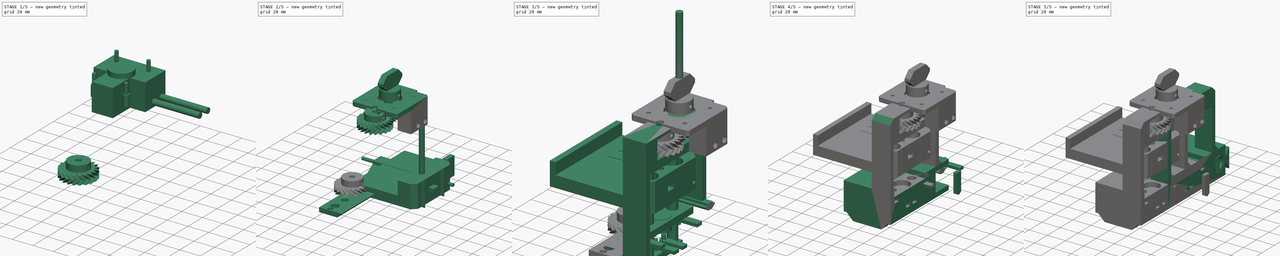
[diagram: build sequence overview — one tinted view per stage of 5, left to right]
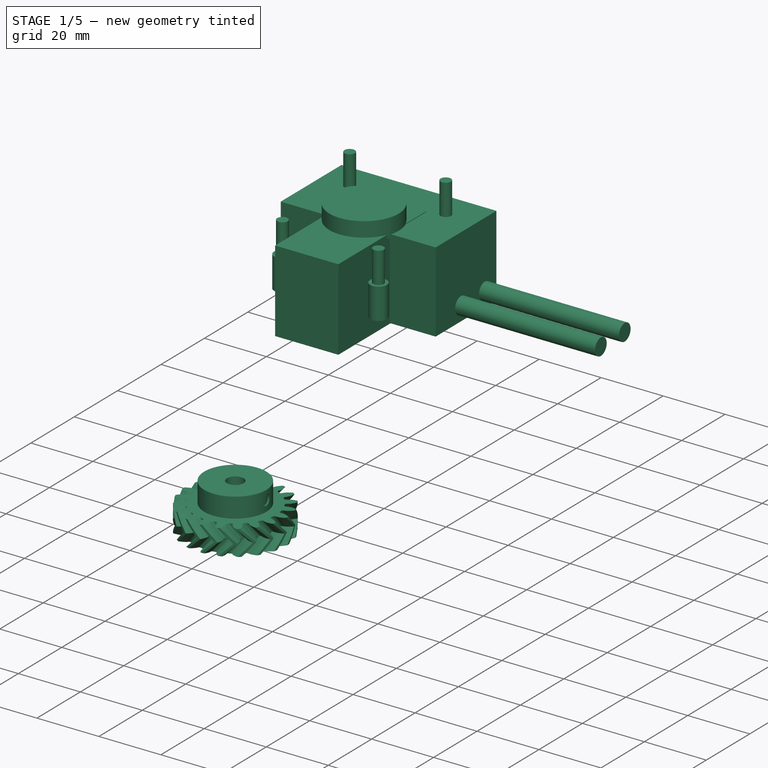
[diagram: stage 1 of 5 — iso view after this stage's code; geometry added in this stage tinted green]
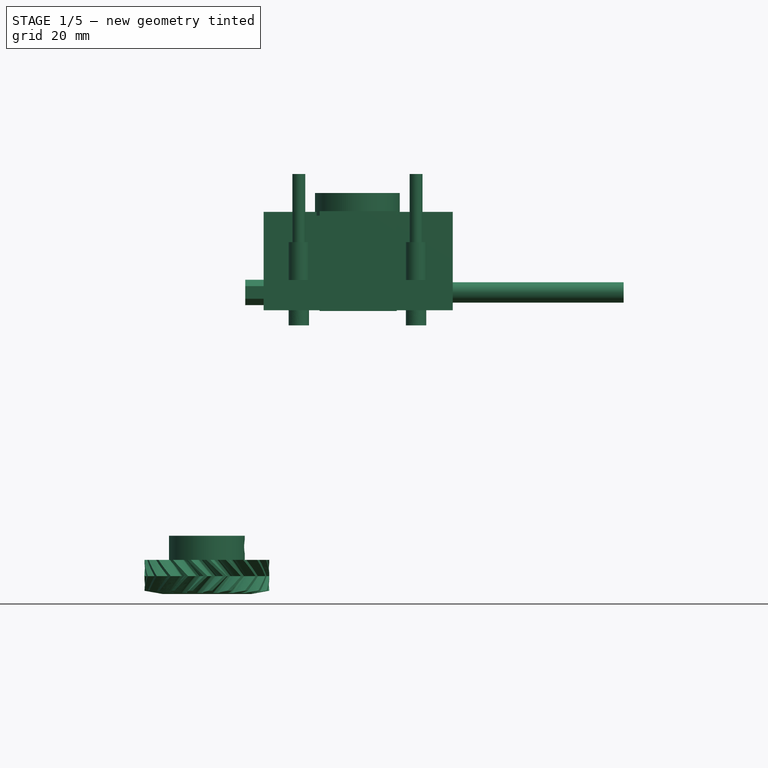
[diagram: stage 1 of 5 — front view after this stage's code; geometry added in this stage tinted green]
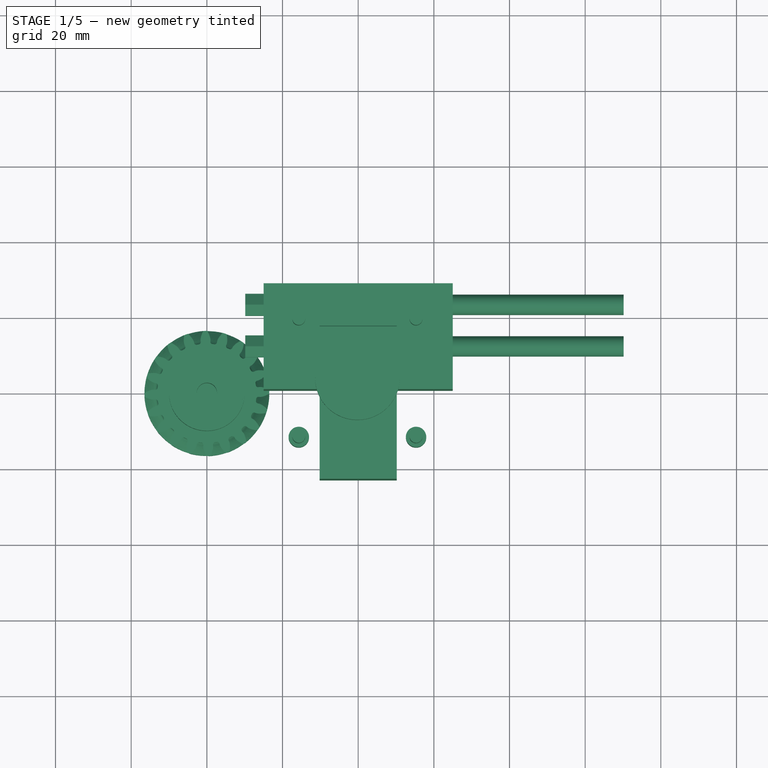
[diagram: stage 1 of 5 — top view after this stage's code; geometry added in this stage tinted green]
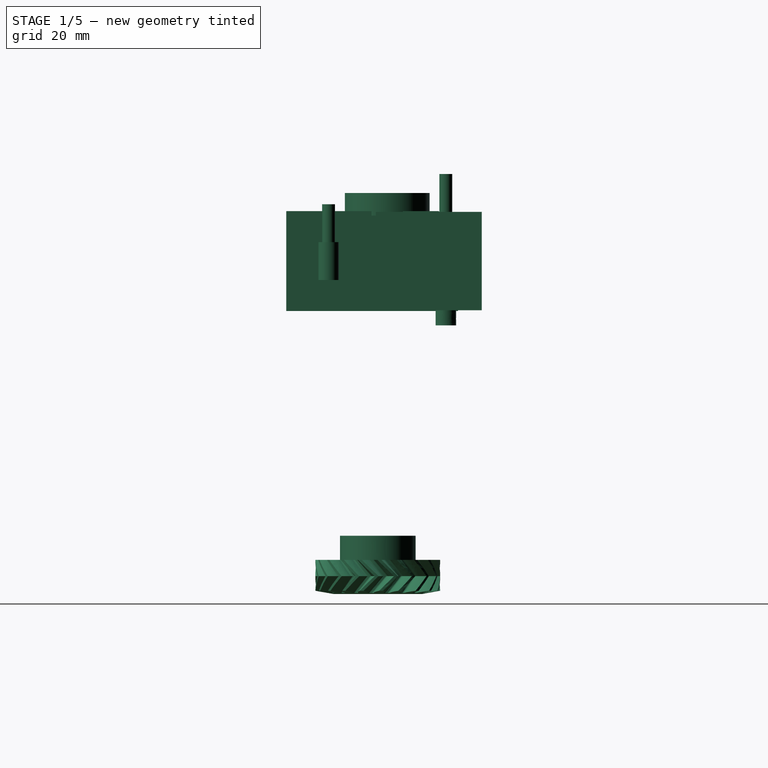
[diagram: stage 1 of 5 — right view after this stage's code; geometry added in this stage tinted green]
FCSTD DOCUMENT  (FreeCAD 0.16R6698 (Git))
Label: smartphoneHolder
License: CreativeCommons Attribution-ShareAlike
LicenseURL: http://creativecommons.org/licenses/by-sa/4.0/
objects: Part::FeaturePython×75, Part::MultiFuse×42, Part::Cut×31, Part::Box×29, Part::Cylinder×25, Sketcher::SketchObject×17, PartDesign::Pad×15, Part::Chamfer×14, Part::Mirroring×9, Part::Offset×8, Part::Compound×4, Part::Part2DObjectPython×4, Part::Helix×4, Part::Sweep×4, App::DocumentObjectGroup×4, Part::Feature×3, Part::Cone×2, PartDesign::Revolution×2, Part::Thickness×1, Part::Fillet×1, +1 more types
note: 308 computed .brp shape members not serialized (recipe doc carries the construction recipe); baked Part::Feature solids carry a one-line shape summary decoded from their .brp

FEATURE [Part::Cylinder] Cylinder1014  label="5mmRodMaster"
  Angle = 360
  Height = 100
  Radius = 2.7
FEATURE [Sketcher::SketchObject] Sketch008  label="M3NutHousingSketch002"
  Placement = pos=(65,30,1.5) rot=(0,-1,0;1.5708rad)
  sketch-geometry (5):
    g0: LineSegment StartX=0 StartY=0 StartZ=0 EndX=1.67432 EndY=2.9 EndZ=0
    g1: LineSegment StartX=1.67432 StartY=2.9 StartZ=0 EndX=21.6743 EndY=2.9 EndZ=0
    g2: LineSegment StartX=21.6743 StartY=2.9 StartZ=0 EndX=21.6743 EndY=-2.9 EndZ=0
    g3: LineSegment StartX=21.6743 StartY=-2.9 StartZ=0 EndX=1.67432 EndY=-2.9 EndZ=0
    g4: LineSegment StartX=1.67432 StartY=-2.9 StartZ=0 EndX=0 EndY=0 EndZ=0
  constraints (14):
    c: Coincident(g-1,g0)
    c: Coincident(g0,g1)
    c: Horizontal(g1)
    c: Coincident(g1,g2)
    c: Vertical(g2)
    c: Coincident(g2,g3)
    c: Horizontal(g3)
    c: Coincident(g3,g4)
    c: Coincident(g4,g0)
    c: Equal(g3,g1)
    c: Equal(g4,g0)
    c: DistanceY(g2) = -5.8
    c: Angle(g-1,g0) = 1.0472
    c: DistanceX(g3) = -20
FEATURE [PartDesign::Pad] Pad007  label="M3NutHousingMaster"
  Length = 2.7
  Length2 = 100
  Placement = pos=(65,30,1.5) rot=(0,-1,0;1.5708rad)
  Sketch = -> Sketch008
  Type = 0
FEATURE [Part::Cylinder] Cylinder1018  label="M3Bolt"
  Angle = 360
  Height = 10
  Radius = 1.7
FEATURE [Part::FeaturePython] Clone022  label="Clone of M3Bolt001"  # Draft clone (typed FeaturePython)
  Objects = -> [Cylinder1018]
  Scale = (1,1,1)
FEATURE [Part::Cylinder] Cylinder1020  label="Cylinder1015"
  Angle = 360
  Height = 10
  Placement = pos=(0,0,10) rot=(0,0,1;0rad)
  Radius = 2.7
FEATURE [Part::MultiFuse] Fusion024  label="M3BoltHead"
  Shapes = -> [Clone022,Cylinder1020]
FEATURE [Part::Part2DObjectPython] InvoluteGear  # Draft 2D object (typed FeaturePython)
  ExternalGear = true
  HighPrecision = true
  Modules = 1.5
  NumberOfTeeth = 20
  PressureAngle = 20
FEATURE [Part::Helix] Helix
  Angle = 0
  Height = 4.7
  LocalCoord = 0
  Pitch = 100
  Radius = 1
  Style = 1
FEATURE [Part::Sweep] Sweep
  Frenet = true
  Sections = -> [InvoluteGear]
  Solid = true
  Spine = -> Helix [Edge1]
  Transition = 1
FEATURE [Part::Part2DObjectPython] InvoluteGear001  # Draft 2D object (typed FeaturePython)
  ExternalGear = true
  HighPrecision = true
  Modules = 1.5
  NumberOfTeeth = 10
  PressureAngle = 20
FEATURE [Part::Helix] Helix001
  Angle = 0
  Height = 4.7
  LocalCoord = 1
  Pitch = 50
  Radius = 1
  Style = 1
FEATURE [Part::Sweep] Sweep001
  Frenet = true
  Sections = -> [InvoluteGear001]
  Solid = true
  Spine = -> Helix001 [Edge1]
  Transition = 1
FEATURE [Part::FeaturePython] Clone069  label="Clone of 5mmRodMaster007"  # Draft clone (typed FeaturePython)
  Objects = -> [Cylinder1014]
  Placement = pos=(0,0,7) rot=(0,0,1;0rad)
  Scale = (1,1,1)
FEATURE [Part::Part2DObjectPython] InvoluteGear002  # Draft 2D object (typed FeaturePython)
  ExternalGear = true
  HighPrecision = true
  Modules = 1.5
  NumberOfTeeth = 20
  PressureAngle = 20
FEATURE [Part::Helix] Helix002
  Angle = 0
  Height = 4.7
  LocalCoord = 0
  Pitch = 100
  Radius = 1
  Style = 1
FEATURE [Part::Sweep] Sweep002
  Frenet = true
  Sections = -> [InvoluteGear002]
  Solid = true
  Spine = -> Helix002 [Edge1]
  Transition = 1
FEATURE [Part::Mirroring] Part__Mirroring008  label="Sweep002 (Mirror #8)"
  Base = (0,0,4.7)
  Normal = (0,0,1)
  Source = -> Sweep002
FEATURE [Part::FeaturePython] Clone074  label="Clone of M3NutHousingMaster010"  # Draft clone (typed FeaturePython)
  Objects = -> [Pad007]
  Placement = pos=(6,0,9) rot=(0,-1,0;1.5708rad)
  Scale = (1,1,1)
FEATURE [Part::Cylinder] Cylinder1036  label="Cylinder1048"
  Angle = 360
  Height = 3
  Placement = pos=(0,0,9) rot=(0,0,1;0rad)
  Radius = 17
FEATURE [Part::FeaturePython] Clone075  label="Clone of 5mmRodMaster009"  # Draft clone (typed FeaturePython)
  Objects = -> [Cylinder1014]
  Scale = (1,1,1)
FEATURE [Part::Cut] Cut043
  Base = -> Sweep
  Tool = -> Clone075
FEATURE [Part::Part2DObjectPython] InvoluteGear003  # Draft 2D object (typed FeaturePython)
  ExternalGear = true
  HighPrecision = true
  Modules = 1.5
  NumberOfTeeth = 10
  PressureAngle = 20
FEATURE [Part::Helix] Helix003
  Angle = 0
  Height = 4.7
  LocalCoord = 1
  Pitch = 50
  Radius = 1
  Style = 1
FEATURE [Part::Sweep] Sweep003
  Frenet = true
  Sections = -> [InvoluteGear003]
  Solid = true
  Spine = -> Helix003 [Edge1]
  Transition = 1
FEATURE [Part::Mirroring] Part__Mirroring009  label="Sweep003 (Mirror #8)"
  Base = (0,0,4.7)
  Normal = (0,0,1)
  Source = -> Sweep003
FEATURE [Part::FeaturePython] Clone076  label="Clone of 5mmRodMaster010"  # Draft clone (typed FeaturePython)
  Objects = -> [Cylinder1014]
  Scale = (1,1,1)
FEATURE [Part::FeaturePython] Clone077  label="Clone of 5mmRodMaster011"  # Draft clone (typed FeaturePython)
  Objects = -> [Cylinder1014]
  Placement = pos=(0,0,-2) rot=(0,0,1;0rad)
  Scale = (1,1,1)
FEATURE [Part::Cut] Cut044
  Base = -> Sweep001
  Tool = -> Clone076
FEATURE [Part::FeaturePython] Clone079  label="Clone of M3NutHousingMaster011"  # Draft clone (typed FeaturePython)
  Objects = -> [Pad007]
  Placement = pos=(-3,0,9) rot=(0,-1,0;1.5708rad)
  Scale = (1,1,1)
FEATURE [Part::FeaturePython] Clone081  label="Clone of M3Bolt009"  # Draft clone (typed FeaturePython)
  Objects = -> [Cylinder1018]
  Placement = pos=(-11.7,0,12.5) rot=(0,1,0;1.5708rad)
  Scale = (1,1,1)
FEATURE [Part::MultiFuse] Fusion065
  Shapes = -> [Clone081,Clone079,Clone077]
FEATURE [Part::Cylinder] Cylinder1037  label="Cylinder1049"
  Angle = 360
  Height = 6
  Placement = pos=(0,0,9.4) rot=(0,0,1;0rad)
  Radius = 9.5
FEATURE [Part::Cylinder] Cylinder1038  label="Cylinder1050"
  Angle = 360
  Height = 6.4
  Placement = pos=(0,0,9) rot=(0,0,1;0rad)
  Radius = 10
FEATURE [Part::Cut] Cut045
  Base = -> Part__Mirroring008
  Tool = -> Cylinder1036
FEATURE [Part::MultiFuse] Fusion066
  Shapes = -> [Cut045,Cylinder1038]
FEATURE [Part::MultiFuse] Fusion067
  Shapes = -> [Cylinder1037,Part__Mirroring009]
FEATURE [Part::Cut] Cut047
  Base = -> Fusion067
  Tool = -> Fusion065
FEATURE [Part::FeaturePython] Clone083  label="Clone of M3BoltHead007"  # Draft clone (typed FeaturePython)
  Objects = -> [Fusion024]
  Placement = pos=(1,0,12.5) rot=(0,1,0;1.5708rad)
  Scale = (1,1,1)
FEATURE [Part::MultiFuse] Fusion068
  Shapes = -> [Clone083,Clone069,Clone074]
FEATURE [Part::Cut] Cut048
  Base = -> Fusion066
  Tool = -> Fusion068
FEATURE [Part::Box] Box049  label="Cube046"
  Height = 26
  Length = 50
  Placement = pos=(15,-0.5,75) rot=(0,0,1;0rad)
  Width = 28
FEATURE [Part::Box] Box050  label="Cube047"
  Height = 26
  Length = 20
  Placement = pos=(30,-24,75) rot=(0,0,1;0rad)
  Width = 45
FEATURE [Part::Chamfer] Chamfer018
  Base = -> Box050
  Edges = 1 edges r=5: [Edge12]
FEATURE [Part::Offset] Offset007
  Fill = false
  Intersection = false
  Join = 2
  Mode = 0
  SelfIntersection = false
  Source = -> Chamfer018
  Value = 0.2
FEATURE [Part::FeaturePython] Clone099  label="Clone of M3BoltHead008"  # Draft clone (typed FeaturePython)
  Objects = -> [Fusion024]
  Placement = pos=(55.3,18,111) rot=(1,0,0;3.14159rad)
  Scale = (1,1,2)
FEATURE [Part::FeaturePython] Clone100  label="Clone of M3BoltHead009"  # Draft clone (typed FeaturePython)
  Objects = -> [Fusion024]
  Placement = pos=(55.3,-13,103) rot=(1,0,0;3.14159rad)
  Scale = (1,1,1)
FEATURE [Part::MultiFuse] Fusion073
  Shapes = -> [Clone099,Clone100]
FEATURE [Part::Mirroring] Part__Mirroring010  label="Fusion073 (Mirror #9)"
  Base = (39.8,0,0)
  Normal = (1,0,0)
  Source = -> Fusion073
FEATURE [Part::Cylinder] Cylinder1040  label="Cylinder1052"
  Angle = 360
  Height = 6
  Placement = pos=(39.8,2.5,100) rot=(0,0,1;0rad)
  Radius = 11.2
FEATURE [Part::FeaturePython] Clone102  label="Clone of M3BoltHead011"  # Draft clone (typed FeaturePython)
  Objects = -> [Fusion024]
  Placement = pos=(10.15,11.15,79.7) rot=(0,1,0;1.5708rad)
  Scale = (1,1,5)
FEATURE [Part::Prism] Prism  label="M3Nut"
  Circumradius = 3.35
  Height = 12
  Polygon = 6
FEATURE [App::DocumentObjectGroup] Group001  label="General"
  Group = -> [Cylinder1003,Cylinder1007,Cylinder1006,Cylinder1014,Pad002,Cylinder1015,Pad007,Cylinder1018,Cylinder1019,Fusion024,Pad019,Prism]
FEATURE [App::DocumentObjectGroup] Group  label="Master"
  Group = -> [Group001,Group002]
FEATURE [Part::FeaturePython] Clone103  label="Clone of M3Nut"  # Draft clone (typed FeaturePython)
  Objects = -> [Prism]
  Placement = pos=(10.15,11.15,79.7) rot=(0,1,0;1.5708rad)
  Scale = (1,1,1)
FEATURE [Part::MultiFuse] Fusion074
  Shapes = -> [Clone102,Clone103]
FEATURE [Part::FeaturePython] Clone104  label="Clone of Fusion074"  # Draft clone (typed FeaturePython)
  Objects = -> [Fusion074]
  Placement = pos=(0,11,0) rot=(0,0,1;0rad)
  Scale = (1,1,1)
FEATURE [Part::MultiFuse] Fusion075
  Shapes = -> [Clone104,Cylinder1040,Fusion074,Fusion073,Part__Mirroring010]
FEATURE [Sketcher::SketchObject] Sketch023
  Placement = pos=(0,0,0) rot=(1,0,0;1.5708rad)
  sketch-geometry (3):
    g0: LineSegment StartX=4.68177 StartY=0 StartZ=0 EndX=9.68177 EndY=0.881635 EndZ=0
    g1: LineSegment StartX=9.68177 StartY=0.881635 StartZ=0 EndX=9.68177 EndY=0 EndZ=0
    g2: LineSegment StartX=9.68177 StartY=0 StartZ=0 EndX=4.68177 EndY=0 EndZ=0
  constraints (9):
    c: PointOnObject(g0,g-1)
    c: Coincident(g0,g1)
    c: PointOnObject(g1,g-1)
    c: Vertical(g1)
    c: Coincident(g1,g2)
    c: Horizontal(g2)
    c: DistanceX(g2) = -5
    c: Angle(g2,g0) = 0.174533
    c: Coincident(g2,g0)
FEATURE [PartDesign::Revolution] Revolution
  Angle = 360
  Axis = (0,0,1)
  Base = (0,0,0)
  Placement = pos=(0,0,0) rot=(1,0,0;1.5708rad)
  ReferenceAxis = -> Sketch023 [V_Axis]
  Reversed = true
  Sketch = -> Sketch023
FEATURE [Part::Cut] Cut057
  Base = -> Cut044
  Tool = -> Revolution
FEATURE [Part::Compound] Compound002003
  Links = -> [Cut057,Cut047]
FEATURE [Sketcher::SketchObject] Sketch024
  Placement = pos=(0,0,0) rot=(1,0,0;1.5708rad)
  sketch-geometry (3):
    g0: LineSegment StartX=11.7269 StartY=0 StartZ=0 EndX=16.7269 EndY=0.881635 EndZ=0
    g1: LineSegment StartX=16.7269 StartY=0.881635 StartZ=0 EndX=16.7269 EndY=0 EndZ=0
    g2: LineSegment StartX=16.7269 StartY=0 StartZ=0 EndX=11.7269 EndY=0 EndZ=0
  constraints (9):
    c: PointOnObject(g0,g-1)
    c: Coincident(g0,g1)
    c: PointOnObject(g1,g-1)
    c: Vertical(g1)
    c: Coincident(g1,g2)
    c: Horizontal(g2)
    c: DistanceX(g2) = -5
    c: Angle(g2,g0) = 0.174533
    c: Coincident(g2,g0)
FEATURE [PartDesign::Revolution] Revolution001
  Angle = 360
  Axis = (0,0,1)
  Base = (0,0,0)
  Placement = pos=(0,0,0) rot=(1,0,0;1.5708rad)
  ReferenceAxis = -> Sketch024 [V_Axis]
  Reversed = true
  Sketch = -> Sketch024
FEATURE [Part::Cut] Cut058
  Base = -> Cut043
  Tool = -> Revolution001
FEATURE [Part::Compound] Compound002004
  Links = -> [Cut058,Cut048]
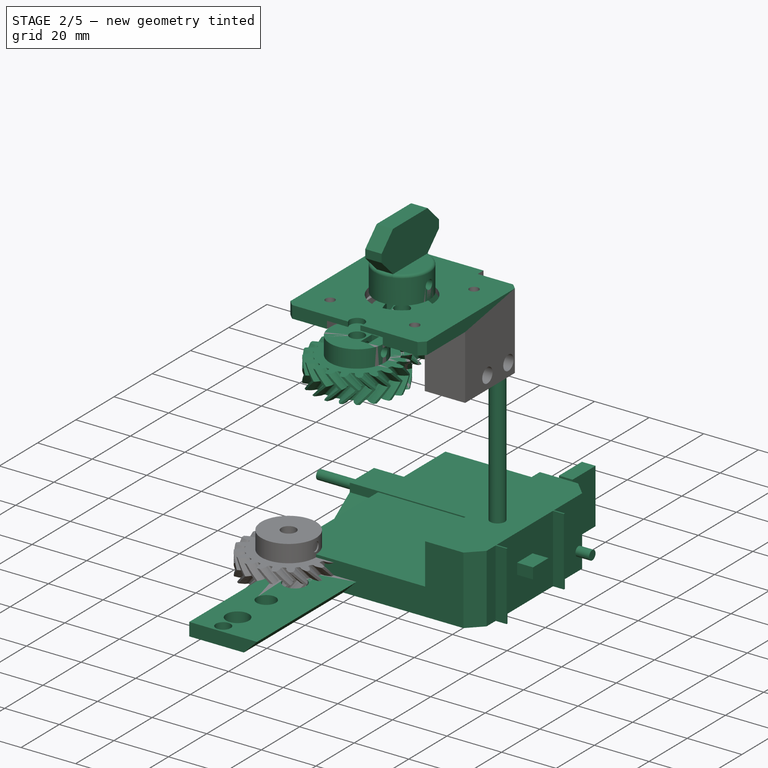
[diagram: stage 2 of 5 — iso view after this stage's code; geometry added in this stage tinted green]
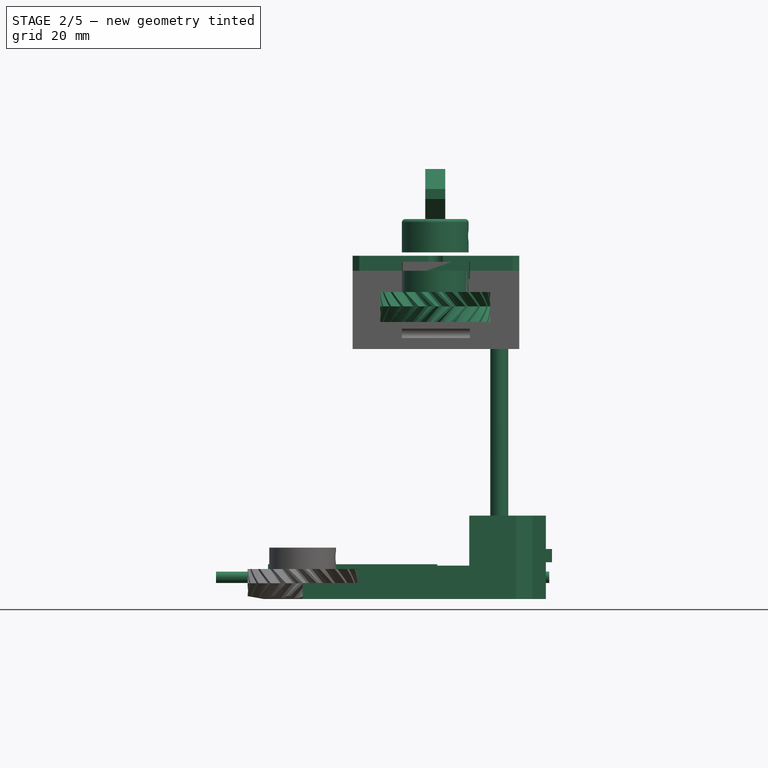
[diagram: stage 2 of 5 — front view after this stage's code; geometry added in this stage tinted green]
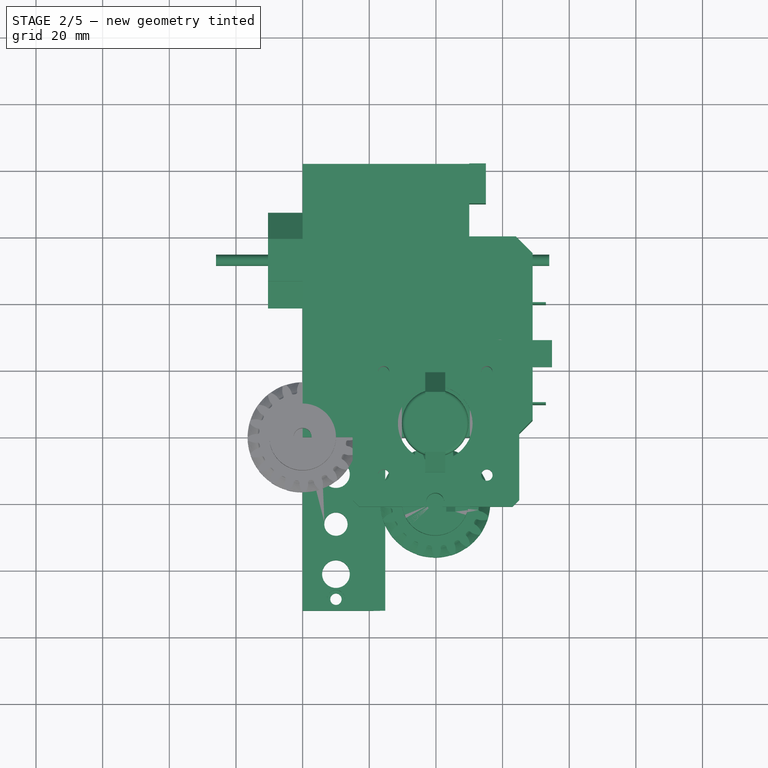
[diagram: stage 2 of 5 — top view after this stage's code; geometry added in this stage tinted green]
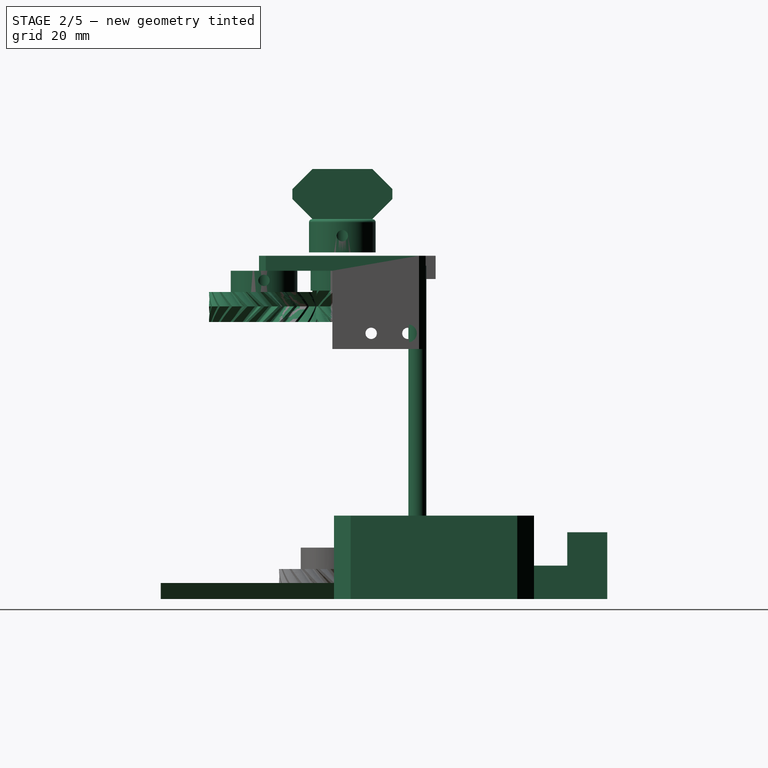
[diagram: stage 2 of 5 — right view after this stage's code; geometry added in this stage tinted green]
FEATURE [Sketcher::SketchObject] Sketch003  label="M5NutHousingSketch"
  sketch-geometry (5):
    g0: LineSegment StartX=0 StartY=0 StartZ=0 EndX=2.33827 EndY=4.05 EndZ=0
    g1: LineSegment StartX=2.33827 StartY=4.05 StartZ=0 EndX=22.3383 EndY=4.05 EndZ=0
    g2: LineSegment StartX=22.3383 StartY=4.05 StartZ=0 EndX=22.3383 EndY=-4.05 EndZ=0
    g3: LineSegment StartX=22.3383 StartY=-4.05 StartZ=0 EndX=2.33827 EndY=-4.05 EndZ=0
    g4: LineSegment StartX=2.33827 StartY=-4.05 StartZ=0 EndX=0 EndY=0 EndZ=0
  constraints (14):
    c: Coincident(g-1,g0)
    c: Coincident(g0,g1)
    c: Horizontal(g1)
    c: Coincident(g1,g2)
    c: Vertical(g2)
    c: Coincident(g2,g3)
    c: Horizontal(g3)
    c: Coincident(g3,g4)
    c: Coincident(g4,g0)
    c: Equal(g3,g1)
    c: Equal(g4,g0)
    c: DistanceY(g2) = -8.1
    c: Angle(g-1,g0) = 1.0472
    c: DistanceX(g3) = -20
FEATURE [PartDesign::Pad] Pad002  label="M5NutHousingMaster"
  Length = 4
  Length2 = 100
  Sketch = -> Sketch003
  Type = 0
FEATURE [Part::Cylinder] Cylinder1006  label="8mmRodMaster"
  Angle = 360
  Height = 70
  Radius = 4.15
FEATURE [Part::Cylinder] Cylinder1007  label="LM8UUMaster"
  Angle = 360
  Height = 24
  Radius = 7.65
FEATURE [Part::FeaturePython] Clone001  label="Clone of LM8UUMaster"  # Draft clone (typed FeaturePython)
  Objects = -> [Cylinder1007]
  Placement = pos=(59,10,1) rot=(0,0,1;1.5708rad)
  Scale = (1,1,1)
FEATURE [Part::FeaturePython] Clone002  label="Clone of LM8UUMaster001"  # Draft clone (typed FeaturePython)
  Objects = -> [Cylinder1007]
  Placement = pos=(59,40,1) rot=(0,0,1;1.5708rad)
  Scale = (1,1,1)
FEATURE [Part::Box] Box010  label="Cube007"
  Height = 20
  Length = 5
  Placement = pos=(50,70,0) rot=(0,0,1;0rad)
  Width = 12
FEATURE [Part::FeaturePython] Clone005  label="Clone of 5mmRodMaster002"  # Draft clone (typed FeaturePython)
  Objects = -> [Cylinder1014]
  Placement = pos=(59,25,0) rot=(0,0,1;1.5708rad)
  Scale = (1,1,1)
FEATURE [Part::FeaturePython] Clone006  label="Clone of M5NutHousing"  # Draft clone (typed FeaturePython)
  Objects = -> [Pad002]
  Placement = pos=(52.5,25,11) rot=(0,0,1;0rad)
  Scale = (1,1,1)
FEATURE [Part::Cylinder] Cylinder1015  label="3mmRodMaster"
  Angle = 360
  Height = 100
  Radius = 1.7
FEATURE [Sketcher::SketchObject] Sketch011
  Placement = pos=(40,53.1407,2) rot=(0.57735,0.57735,0.57735;2.0944rad)
  sketch-geometry (6):
    g0: LineSegment StartX=-13.1 StartY=0 StartZ=0 EndX=-5.95926 EndY=5 EndZ=0
    g1: LineSegment StartX=5.95926 StartY=5 StartZ=0 EndX=13.1 EndY=0 EndZ=0
    g2: LineSegment StartX=13.1 StartY=0 StartZ=0 EndX=-13.1 EndY=0 EndZ=0
    g3: LineSegment StartX=-5.95926 StartY=5 StartZ=0 EndX=-5.95926 EndY=8 EndZ=0
    g4: LineSegment StartX=-5.95926 StartY=8 StartZ=0 EndX=5.95926 EndY=8 EndZ=0
    g5: LineSegment StartX=5.95926 StartY=8 StartZ=0 EndX=5.95926 EndY=5 EndZ=0
  constraints (18):
    c: PointOnObject(g0,g-1)
    c: PointOnObject(g1,g-1)
    c: Coincident(g1,g2)
    c: Coincident(g2,g0)
    c: Angle(g2,g0) = 0.610865
    c: Angle(g1,g2) = 0.610865
    c: DistanceY(g1,g1) = -5
    c: DistanceX(g2) = -26.2
    c: DistanceX(g-1,g0) = -13.1
    c: Coincident(g0,g3)
    c: Vertical(g3)
    c: Coincident(g3,g4)
    c: Horizontal(g4)
    c: Coincident(g4,g5)
    c: Vertical(g5)
    c: DistanceY(g5) = -3
    c: Coincident(g1,g5)
    c: Equal(g3,g5)
FEATURE [PartDesign::Pad] Pad010
  Length = 50
  Length2 = 100
  Placement = pos=(40,53.1407,2) rot=(0.57735,0.57735,0.57735;2.0944rad)
  Reversed = true
  Sketch = -> Sketch011
  Type = 0
FEATURE [Part::Box] Box021  label="Cube018"
  Height = 25
  Length = 0.5
  Placement = pos=(73,39.75,0) rot=(0,0,1;1.5708rad)
  Width = 10
FEATURE [Part::Box] Box022  label="Cube019"
  Height = 25
  Length = 0.5
  Placement = pos=(73,9.75,0) rot=(0,0,1;1.5708rad)
  Width = 10
FEATURE [Part::FeaturePython] Clone018  label="Clone of 3mmRodMaster"  # Draft clone (typed FeaturePython)
  Objects = -> [Cylinder1015]
  Placement = pos=(-26,53.1407,6.5) rot=(0,1,0;1.5708rad)
  Scale = (1,1,1)
FEATURE [Part::Box] Box  label="Cube"
  Height = 10
  Length = 50
  Width = 82
FEATURE [Part::Box] Box026  label="Cube023"
  Height = 25
  Length = 19
  Placement = pos=(50,0,0) rot=(0,0,1;0rad)
  Width = 60
FEATURE [Part::Cylinder] Cylinder1030  label="Cylinder1044"
  Angle = 360
  Height = 10
  Placement = pos=(59,40,0) rot=(0,0,1;0rad)
  Radius = 5
FEATURE [Part::Cylinder] Cylinder1031  label="Cylinder1045"
  Angle = 360
  Height = 10
  Placement = pos=(59,10,0) rot=(0,0,1;0rad)
  Radius = 5
FEATURE [Part::MultiFuse] Fusion037
  Shapes = -> [Box,Box010,Box026]
FEATURE [Part::Offset] Offset002
  Fill = false
  Intersection = false
  Join = 2
  Mode = 0
  SelfIntersection = false
  Source = -> Pad010
  Value = 0.4
FEATURE [Part::MultiFuse] Fusion038
  Shapes = -> [Offset002,Clone018]
FEATURE [Part::FeaturePython] Clone045  label="Clone of 8mmRodMaster004"  # Draft clone (typed FeaturePython)
  Objects = -> [Cylinder1006]
  Placement = pos=(10,-41,-55.2) rot=(0,0,1;0rad)
  Scale = (1,1,1)
FEATURE [Part::FeaturePython] Clone046  label="Clone of 8mmRodMaster005"  # Draft clone (typed FeaturePython)
  Objects = -> [Cylinder1006]
  Placement = pos=(10,-11,-55.2) rot=(0,0,1;0rad)
  Scale = (1,1,1)
FEATURE [Part::FeaturePython] Clone047  label="Clone of M3BoltHead005"  # Draft clone (typed FeaturePython)
  Objects = -> [Fusion024]
  Placement = pos=(10,-3.5,-8.2) rot=(0,0,1;0rad)
  Scale = (1,1,1)
FEATURE [Part::FeaturePython] Clone048  label="Clone of M3BoltHead006"  # Draft clone (typed FeaturePython)
  Objects = -> [Fusion024]
  Placement = pos=(10,-48.5,-8.2) rot=(0,0,1;0rad)
  Scale = (1,1,1)
FEATURE [Part::Cylinder] Cylinder1032  label="Cylinder1046"
  Angle = 360
  Height = 10
  Placement = pos=(10,-26,-4.4) rot=(0,0,1;0rad)
  Radius = 3.5
FEATURE [Part::MultiFuse] Fusion049
  Shapes = -> [Clone045,Clone046,Clone047,Clone048,Cylinder1032]
FEATURE [Part::Chamfer] Chamfer004
  Base = -> Fusion037
  Edges = 2 edges r=5: [Edge9,Edge11]
FEATURE [Sketcher::SketchObject] Sketch022
  Placement = pos=(0,0,0) rot=(1,0,0;1.5708rad)
  sketch-geometry (4):
    g0: LineSegment StartX=0 StartY=0 StartZ=0 EndX=0 EndY=4.8 EndZ=0
    g1: LineSegment StartX=0 StartY=4.8 StartZ=0 EndX=24.8 EndY=4.8 EndZ=0
    g2: LineSegment StartX=24.8 StartY=4.8 StartZ=0 EndX=20 EndY=0 EndZ=0
    g3: LineSegment StartX=20 StartY=0 StartZ=0 EndX=0 EndY=0 EndZ=0
  constraints (11):
    c: Coincident(g-1,g0)
    c: PointOnObject(g0,g-2)
    c: Coincident(g0,g1)
    c: Horizontal(g1)
    c: Coincident(g1,g2)
    c: PointOnObject(g2,g-1)
    c: Coincident(g2,g3)
    c: Coincident(g3,g0)
    c: Angle(g2,g3) = 2.35619
    c: DistanceX(g3) = -20
    c: DistanceY(g0) = 4.8
FEATURE [PartDesign::Pad] Pad021
  Length = 52
  Length2 = 100
  Placement = pos=(0,0,0) rot=(1,0,0;1.5708rad)
  Sketch = -> Sketch022
  Type = 0
FEATURE [Part::Cut] Cut051  label="BearingFix"
  Base = -> Pad021
  Tool = -> Fusion049
FEATURE [Part::Cylinder] Cylinder1039  label="Cylinder1051"
  Angle = 360
  Height = 10
  Radius = 10
FEATURE [Part::FeaturePython] Clone085  label="Clone of 5mmRodMaster013"  # Draft clone (typed FeaturePython)
  Objects = -> [Cylinder1014]
  Placement = pos=(0,0,-90) rot=(0,0,1;0rad)
  Scale = (1,1,1)
FEATURE [Part::FeaturePython] Clone086  label="Clone of M3Bolt010"  # Draft clone (typed FeaturePython)
  Objects = -> [Cylinder1018]
  Placement = pos=(1,0,5) rot=(0.707107,0,0.707107;3.14159rad)
  Scale = (1,1,1)
FEATURE [Part::FeaturePython] Clone087  label="Clone of M3NutHousingMaster012"  # Draft clone (typed FeaturePython)
  Objects = -> [Pad007]
  Placement = pos=(6.7,0,8.5) rot=(-0.707107,0,0.707107;3.14159rad)
  Scale = (1,1,1)
FEATURE [Part::MultiFuse] Fusion069
  Shapes = -> [Clone086,Clone087,Clone085]
FEATURE [Part::Box] Box044  label="Cube041"
  Height = 15
  Length = 6
  Placement = pos=(-3,-15,10) rot=(0,0,1;0rad)
  Width = 30
FEATURE [Part::Chamfer] Chamfer017
  Base = -> Box044
  Edges = 4 edges r=6: [Edge9,Edge10,Edge11,Edge12]
FEATURE [Part::MultiFuse] Fusion070
  Shapes = -> [Cylinder1039,Chamfer017]
FEATURE [Part::Fillet] Fillet
  Base = -> Fusion070
  Edges = 1 edges r=1: [Edge1]
FEATURE [Part::Cut] Cut052  label="AdjustWheel"
  Base = -> Fillet
  Tool = -> Fusion069
FEATURE [Part::FeaturePython] Clone090  label="Clone of BigBear"  # WARN: FeaturePython — macro-defined, semantics opaque (R4)
  Placement = pos=(39.8,-21,83.1) rot=(0,0,1;0rad)
  Scale = (1,1,1)
FEATURE [Part::FeaturePython] Clone091  label="Clone of SmallGear"  # WARN: FeaturePython — macro-defined, semantics opaque (R4)
  Placement = pos=(39.8,2.5,83.1) rot=(0,0,1;0.314159rad)
  Scale = (1,1,1)
FEATURE [Part::FeaturePython] Clone094  label="Clone of BearingFix"  # Draft clone (typed FeaturePython)
  Objects = -> [Cut051]
  Scale = (1,1,1)
FEATURE [App::DocumentObjectGroup] Group003  label="Assembly"
  Group = -> [Clone088,Clone089,Clone090,Clone091,Clone092,Clone093,Clone094]
FEATURE [Part::Feature] Part__Feature  label="Nema-17-motor-40mm-final"
  Placement = pos=(39.8,2.5,143.1) rot=(0,1,0;3.14159rad)
  shape: bbox 42.3 x 42.3 x 60.1 mm, 55 faces (baked)
FEATURE [Part::FeaturePython] Clone095  label="Clone of AdjustWheel"  # Draft clone (typed FeaturePython)
  Objects = -> [Cut052]
  Placement = pos=(39.8,2.5,104) rot=(0,0,1;0rad)
  Scale = (1,1,1)
FEATURE [Part::Box] Box045  label="Cube042"
  Height = 7
  Length = 20
  Placement = pos=(30,13.5,96) rot=(0,0,1;0rad)
  Width = 17
FEATURE [Part::FeaturePython] Clone097  label="Clone of 5mmRodMaster015"  # Draft clone (typed FeaturePython)
  Objects = -> [Cylinder1014]
  Placement = pos=(39.8,-21,101) rot=(0,0,1;0rad)
  Scale = (1,1,1)
FEATURE [Part::Box] Box047  label="Cube044"
  Height = 2.5
  Length = 50
  Placement = pos=(15,-22.5,98.5) rot=(0,0,1;0rad)
  Width = 22
FEATURE [Part::Box] Box048  label="Cube045"
  Height = 2
  Length = 50
  Placement = pos=(15,-22.5,101) rot=(0,0,1;0rad)
  Width = 50
FEATURE [Part::MultiFuse] Fusion072
  Shapes = -> [Box047,Box048,Box049]
FEATURE [Part::Cut] Cut054
  Base = -> Fusion072
  Tool = -> Offset007
FEATURE [Part::Cut] Cut055
  Base = -> Cut054
  Tool = -> Fusion075
FEATURE [Part::Cut] Cut056
  Base = -> Cut055
  Tool = -> Clone097
FEATURE [Part::Chamfer] Chamfer019
  Base = -> Cut056
  Edges = 4 edges r=2: [Edge11,Edge13,Edge16,Edge22]
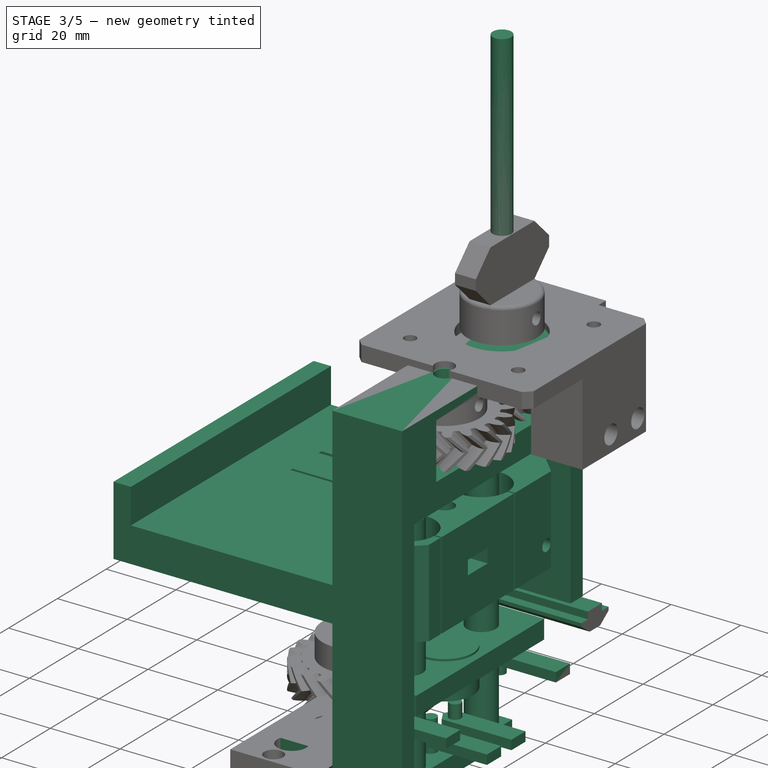
[diagram: stage 3 of 5 — iso view after this stage's code; geometry added in this stage tinted green]
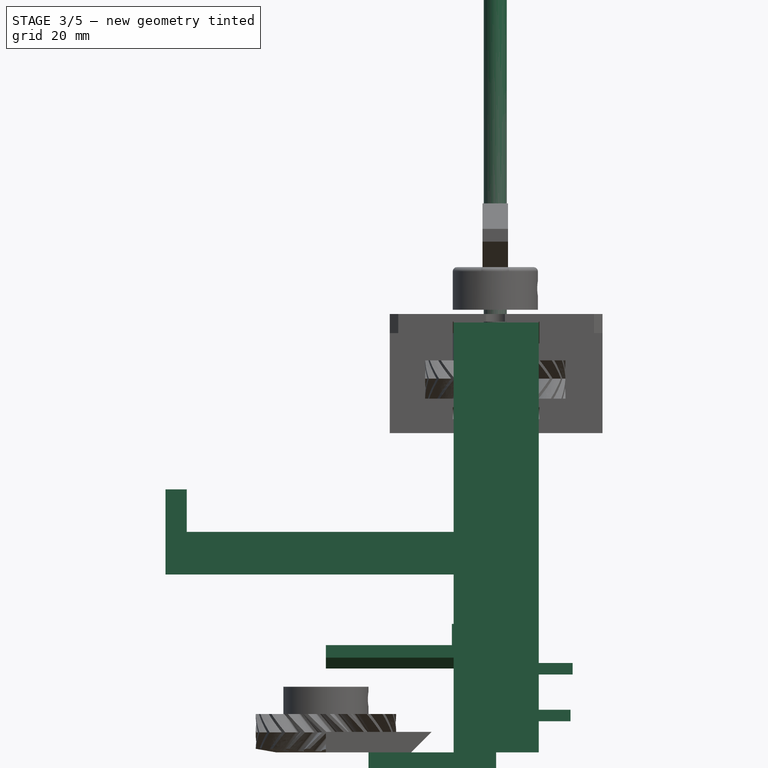
[diagram: stage 3 of 5 — front view after this stage's code; geometry added in this stage tinted green]
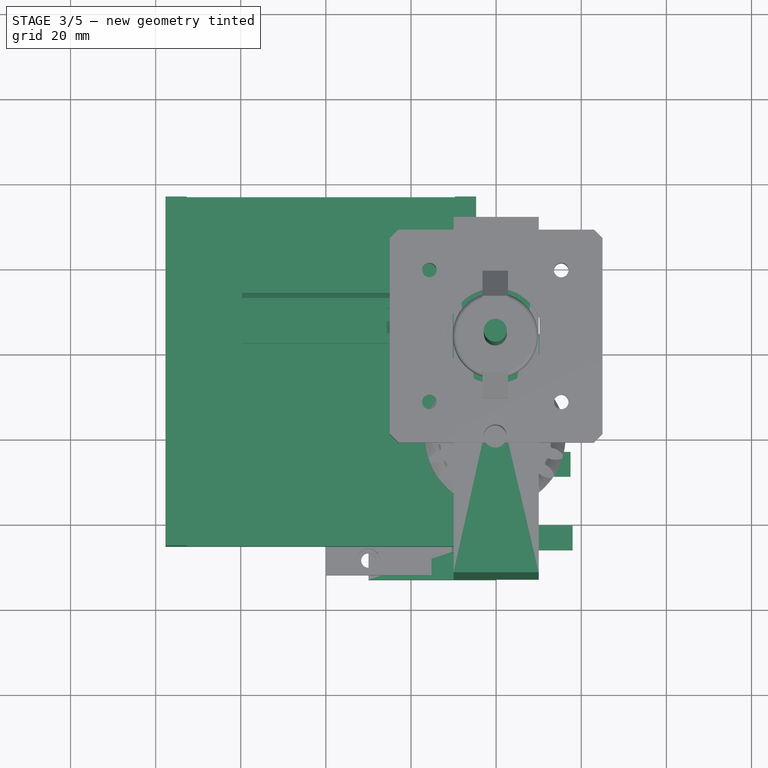
[diagram: stage 3 of 5 — top view after this stage's code; geometry added in this stage tinted green]
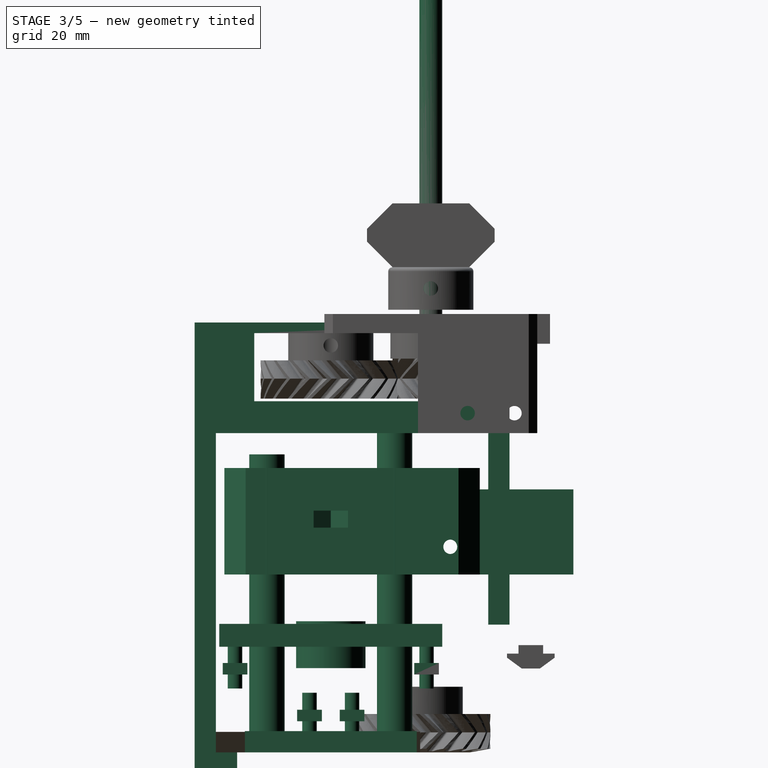
[diagram: stage 3 of 5 — right view after this stage's code; geometry added in this stage tinted green]
FEATURE [Sketcher::SketchObject] Sketch
  Placement = pos=(0,0,0) rot=(0.57735,0.57735,0.57735;2.0944rad)
  sketch-geometry (8):
    g0: LineSegment StartX=36 StartY=25.2 StartZ=0 EndX=36 EndY=30 EndZ=0
    g1: LineSegment StartX=36 StartY=30 StartZ=0 EndX=0 EndY=30 EndZ=0
    g2: LineSegment StartX=0 StartY=0 StartZ=0 EndX=36 EndY=0 EndZ=0
    g3: LineSegment StartX=36 StartY=0 StartZ=0 EndX=36 EndY=4.8 EndZ=0
    g4: LineSegment StartX=36 StartY=4.8 StartZ=0 EndX=16 EndY=4.8 EndZ=0
    g5: LineSegment StartX=16 StartY=4.8 StartZ=0 EndX=16 EndY=25.2 EndZ=0
    g6: LineSegment StartX=16 StartY=25.2 StartZ=0 EndX=36 EndY=25.2 EndZ=0
    g7: LineSegment StartX=0 StartY=30 StartZ=0 EndX=0 EndY=0 EndZ=0
  constraints (24):
    c: Vertical(g0)
    c: Coincident(g0,g1)
    c: Horizontal(g1)
    c: Horizontal(g2)
    c: Coincident(g2,g3)
    c: Vertical(g3)
    c: Coincident(g3,g4)
    c: Horizontal(g4)
    c: Coincident(g4,g5)
    c: Vertical(g5)
    c: Coincident(g5,g6)
    c: Coincident(g6,g0)
    c: Horizontal(g6)
    c: Equal(g0,g3)
    c: Equal(g4,g6)
    c: DistanceY(g5) = 20.4
    c: DistanceX(g6) = 20
    c: DistanceY(g3) = 4.8
    c: DistanceX(g1,g5) = 16
    c: Coincident(g2,g-1)
    c: Equal(g1,g2)
    c: PointOnObject(g7,g-2)
    c: Coincident(g7,g-1)
    c: Coincident(g7,g1)
FEATURE [Part::Cylinder] Cylinder1003  label="Bearing625ZZMaster"
  Angle = 360
  Height = 11
  Radius = 8.15
FEATURE [Sketcher::SketchObject] Sketch007
  Placement = pos=(0,0,0) rot=(0,0.707107,0.707107;3.14159rad)
  sketch-geometry (6):
    g0: LineSegment StartX=0 StartY=0 StartZ=0 EndX=0 EndY=20 EndZ=0
    g1: LineSegment StartX=0 StartY=20 StartZ=0 EndX=5 EndY=20 EndZ=0
    g2: LineSegment StartX=5 StartY=20 StartZ=0 EndX=5 EndY=10 EndZ=0
    g3: LineSegment StartX=5 StartY=10 StartZ=0 EndX=18 EndY=10 EndZ=0
    g4: LineSegment StartX=18 StartY=10 StartZ=0 EndX=18 EndY=0 EndZ=0
    g5: LineSegment StartX=18 StartY=0 StartZ=0 EndX=0 EndY=0 EndZ=0
  constraints (17):
    c: Coincident(g-1,g0)
    c: Vertical(g0)
    c: Coincident(g0,g1)
    c: Coincident(g1,g2)
    c: Vertical(g2)
    c: Coincident(g2,g3)
    c: Horizontal(g3)
    c: Coincident(g3,g4)
    c: Vertical(g4)
    c: Coincident(g4,g5)
    c: Horizontal(g5)
    c: Coincident(g5,g-1)
    c: Horizontal(g1)
    c: DistanceX(g1) = 5
    c: DistanceY(g2) = -10
    c: DistanceX(g3) = 13
    c: DistanceY(g4) = -10
FEATURE [PartDesign::Pad] Pad006
  Length = 82
  Length2 = 100
  Placement = pos=(0,0,0) rot=(0,0.707107,0.707107;3.14159rad)
  Sketch = -> Sketch007
  Type = 0
FEATURE [Part::FeaturePython] Clone008  label="Clone of 3mmRodMaster001"  # Draft clone (typed FeaturePython)
  Objects = -> [Cylinder1015]
  Placement = pos=(-58,29,6.5) rot=(0,1,0;1.5708rad)
  Scale = (1,1,1)
FEATURE [Part::FeaturePython] Clone009  label="Clone of M3NutHousingMaster"  # Draft clone (typed FeaturePython)
  Objects = -> [Pad007]
  Placement = pos=(-52,29,3) rot=(0,-1,0;1.5708rad)
  Scale = (1,1,1)
FEATURE [Part::Cylinder] Cylinder1019  label="M4Bolt"
  Angle = 360
  Height = 10
  Radius = 2.2
FEATURE [Sketcher::SketchObject] Sketch010
  Placement = pos=(-18,29,2) rot=(0.57735,0.57735,0.57735;2.0944rad)
  sketch-geometry (6):
    g0: LineSegment StartX=-12.5 StartY=0 StartZ=0 EndX=-5.35926 EndY=5 EndZ=0
    g1: LineSegment StartX=5.35926 StartY=5 StartZ=0 EndX=12.5 EndY=0 EndZ=0
    g2: LineSegment StartX=12.5 StartY=0 StartZ=0 EndX=-12.5 EndY=0 EndZ=0
    g3: LineSegment StartX=-5.35926 StartY=5 StartZ=0 EndX=-5.35926 EndY=8 EndZ=0
    g4: LineSegment StartX=-5.35926 StartY=8 StartZ=0 EndX=5.35926 EndY=8 EndZ=0
    g5: LineSegment StartX=5.35926 StartY=8 StartZ=0 EndX=5.35926 EndY=5 EndZ=0
  constraints (18):
    c: PointOnObject(g0,g-1)
    c: PointOnObject(g1,g-1)
    c: Coincident(g1,g2)
    c: Coincident(g2,g0)
    c: Angle(g2,g0) = 0.610865
    c: Angle(g1,g2) = 0.610865
    c: DistanceY(g1,g1) = -5
    c: DistanceX(g2) = -25
    c: DistanceX(g-1,g0) = -12.5
    c: Coincident(g0,g3)
    c: Vertical(g3)
    c: Coincident(g3,g4)
    c: Horizontal(g4)
    c: Coincident(g4,g5)
    c: Vertical(g5)
    c: DistanceY(g5) = -3
    c: Coincident(g1,g5)
    c: Equal(g3,g5)
FEATURE [PartDesign::Pad] Pad009
  Length = 40
  Length2 = 100
  Placement = pos=(-18,29,2) rot=(0.57735,0.57735,0.57735;2.0944rad)
  Reversed = true
  Sketch = -> Sketch010
  Type = 0
FEATURE [Part::MultiFuse] Fusion021
  Placement = pos=(0,-1e-12,0) rot=(0,0,1;0rad)
  Shapes = -> [Clone008,Clone009]
FEATURE [Part::MultiFuse] Fusion034
  Shapes = -> [Pad009,Pad006]
FEATURE [Part::Cut] Cut025
  Base = -> Fusion034
  Tool = -> Fusion021
FEATURE [Part::MultiFuse] Fusion036
  Placement = pos=(0.5,0,0) rot=(0,0,1;0rad)
  Shapes = -> [Clone006,Clone005,Box021,Box022,Clone002,Clone001,Cylinder1031,Cylinder1030]
FEATURE [Part::MultiFuse] Fusion039
  Shapes = -> [Fusion038,Fusion036]
FEATURE [Part::FeaturePython] Clone033  label="Clone of M3BoltHead001"  # Draft clone (typed FeaturePython)
  Objects = -> [Fusion024]
  Placement = pos=(4.5,-25,-8.2) rot=(0,0,1;0rad)
  Scale = (1,1,1)
FEATURE [Part::FeaturePython] Clone034  label="Clone of M3BoltHead002"  # Draft clone (typed FeaturePython)
  Objects = -> [Fusion024]
  Placement = pos=(4.5,-15,-8.2) rot=(0,0,1;0rad)
  Scale = (1,1,1)
FEATURE [Part::MultiFuse] Fusion041
  Shapes = -> [Clone033,Clone034]
FEATURE [Part::Chamfer] Chamfer011  label="LateralAdjust"
  Base = -> Cut025
  Edges = 2 edges r=1: [Edge8,Edge11]
  Placement = pos=(-37.7,79,44) rot=(0,0,1;3.14159rad)
FEATURE [Part::Cut] Cut  label="BodyAdjust"
  Base = -> Chamfer004
  Placement = pos=(-19.7,-3,44) rot=(0,0,1;0rad)
  Tool = -> Fusion039
FEATURE [Sketcher::SketchObject] Sketch019
  sketch-geometry (7):
    g0: LineSegment StartX=-3.1 StartY=0 StartZ=0 EndX=-3.1 EndY=2 EndZ=0
    g1: LineSegment StartX=-3.1 StartY=2 StartZ=0 EndX=-5.8 EndY=2 EndZ=0
    g2: LineSegment StartX=-5.8 StartY=2 StartZ=0 EndX=-5.8 EndY=3.25 EndZ=0
    g3: LineSegment StartX=-5.8 StartY=3.25 StartZ=0 EndX=-2.2 EndY=5.9 EndZ=0
    g4: LineSegment StartX=-2.2 StartY=5.9 StartZ=0 EndX=0 EndY=5.9 EndZ=0
    g5: LineSegment StartX=0 StartY=5.9 StartZ=0 EndX=0 EndY=0 EndZ=0
    g6: LineSegment StartX=-3.1 StartY=0 StartZ=0 EndX=0 EndY=0 EndZ=0
  constraints (20):
    c: Vertical(g0)
    c: Coincident(g0,g1)
    c: Horizontal(g1)
    c: Coincident(g1,g2)
    c: Vertical(g2)
    c: Coincident(g2,g3)
    c: Coincident(g3,g4)
    c: Horizontal(g4)
    c: Coincident(g5,g4)
    c: Vertical(g5)
    c: Coincident(g6,g0)
    c: Coincident(g6,g5)
    c: Horizontal(g6)
    c: DistanceX(g6) = 3.1
    c: DistanceX(g1) = -2.7
    c: DistanceY(g2) = 1.25
    c: DistanceX(g4) = 2.2
    c: DistanceY(g5) = -5.9
    c: DistanceY(g0) = 2
    c: Coincident(g-1,g5)
FEATURE [PartDesign::Pad] Pad018
  Length = 50.4
  Length2 = 100
  Sketch = -> Sketch019
  Type = 0
FEATURE [Part::Mirroring] Part__Mirroring005  label="Pad014 (Mirror #5)001"
  Base = (0,0,0)
  Normal = (1,0,0)
  Source = -> Pad018
FEATURE [Part::MultiFuse] Fusion052
  Shapes = -> [Part__Mirroring005,Pad018]
FEATURE [Part::Offset] Offset005
  Fill = false
  Intersection = false
  Join = 2
  Mode = 0
  Placement = pos=(50.2,26,25.4) rot=(0.57735,0.57735,-0.57735;4.18879rad)
  SelfIntersection = false
  Source = -> Fusion052
  Value = -0.2
FEATURE [Part::Box] Box037  label="Cube034"
  Height = 45
  Length = 20
  Placement = pos=(30,16,30) rot=(0,0,1;0rad)
  Width = 5
FEATURE [Part::Box] Box038  label="Cube035"
  Height = 75
  Length = 20
  Placement = pos=(30,-53,0) rot=(0,0,1;0rad)
  Width = 5
FEATURE [Part::FeaturePython] Clone054  label="Clone of Bearing625ZZMaster001"  # Draft clone (typed FeaturePython)
  Objects = -> [Cylinder1003]
  Placement = pos=(39.8,-21,19.8) rot=(0,0,1;0rad)
  Scale = (1,1,1)
FEATURE [Part::FeaturePython] Clone055  label="Clone of 8mmRodMaster"  # Draft clone (typed FeaturePython)
  Objects = -> [Cylinder1006]
  Placement = pos=(39.8,-36,0) rot=(0,0,1;0rad)
  Scale = (1,1,1)
FEATURE [Part::FeaturePython] Clone056  label="Clone of 8mmRodMaster006"  # Draft clone (typed FeaturePython)
  Objects = -> [Cylinder1006]
  Placement = pos=(39.8,-6,0) rot=(0,0,1;0rad)
  Scale = (1,1,1)
FEATURE [Part::Box] Box039  label="Cube036"
  Height = 5
  Length = 10.4
  Placement = pos=(34.6,-41.2,0) rot=(0,0,1;0rad)
  Width = 40.4
FEATURE [Part::FeaturePython] Clone057  label="Clone of M3Bolt005"  # Draft clone (typed FeaturePython)
  Objects = -> [Cylinder1018]
  Placement = pos=(39.3,-16,4) rot=(0,0,1;0rad)
  Scale = (1,1,1)
FEATURE [Part::FeaturePython] Clone058  label="Clone of M3Bolt006"  # Draft clone (typed FeaturePython)
  Objects = -> [Cylinder1018]
  Placement = pos=(39.3,-26,4) rot=(0,0,1;0rad)
  Scale = (1,1,1)
FEATURE [Part::FeaturePython] Clone059  label="Clone of M3NutHousingMaster006"  # Draft clone (typed FeaturePython)
  Objects = -> [Pad007]
  Placement = pos=(35.8,-26,7.3) rot=(0,0,1;0rad)
  Scale = (1,1,1)
FEATURE [Part::FeaturePython] Clone060  label="Clone of M3NutHousingMaster007"  # Draft clone (typed FeaturePython)
  Objects = -> [Pad007]
  Placement = pos=(35.8,-16,7.3) rot=(0,0,1;0rad)
  Scale = (1,1,1)
FEATURE [Part::MultiFuse] Fusion055
  Shapes = -> [Clone060,Clone059,Clone058,Clone057,Box039]
FEATURE [Part::Box] Box040  label="Cube037"
  Height = 26
  Length = 20
  Placement = pos=(30,-53,75) rot=(0,0,1;0rad)
  Width = 74
FEATURE [Part::Box] Box041  label="Cube038"
  Height = 16
  Length = 25
  Placement = pos=(30,-39,82.5) rot=(0,0,1;0rad)
  Width = 52.5
FEATURE [Part::FeaturePython] Clone061  label="Clone of 8mmRodMaster007"  # Draft clone (typed FeaturePython)
  Objects = -> [Cylinder1006]
  Placement = pos=(39.8,-36,10) rot=(0,0,1;0rad)
  Scale = (1,1,1)
FEATURE [Part::FeaturePython] Clone062  label="Clone of 8mmRodMaster008"  # Draft clone (typed FeaturePython)
  Objects = -> [Cylinder1006]
  Placement = pos=(39.8,-6,10) rot=(0,0,1;0rad)
  Scale = (1,1,1)
FEATURE [Part::MultiFuse] Fusion054
  Shapes = -> [Clone054,Clone056,Clone055,Clone062]
FEATURE [Part::FeaturePython] Clone063  label="Clone of 5mmRodMaster006"  # Draft clone (typed FeaturePython)
  Objects = -> [Cylinder1014]
  Placement = pos=(39.8,-21,2) rot=(0,0,1;0rad)
  Scale = (1,1,1)
FEATURE [Part::MultiFuse] Fusion056
  Shapes = -> [Clone063,Clone061,Box041]
FEATURE [Part::Cut] Cut039
  Base = -> Box040
  Tool = -> Fusion056
FEATURE [Part::MultiFuse] Fusion058
  Shapes = -> [Fusion055,Fusion054]
FEATURE [Part::Box] Box042  label="Cube039"
  Height = 6.9
  Length = 30
  Placement = pos=(10,-53,-6.9) rot=(0,0,1;0rad)
  Width = 10
FEATURE [Part::Box] Box043  label="Cube040"
  Height = 5
  Length = 20
  Placement = pos=(29.8,-47,25) rot=(0,0,1;0rad)
  Width = 52
FEATURE [Part::Offset] Offset006
  Fill = false
  Intersection = false
  Join = 2
  Mode = 0
  SelfIntersection = false
  Source = -> Box043
  Value = 0.2
FEATURE [Part::FeaturePython] Clone064  label="Clone of M3Bolt007"  # Draft clone (typed FeaturePython)
  Objects = -> [Cylinder1018]
  Placement = pos=(39.8,1.5,15) rot=(0,0,1;0rad)
  Scale = (1,1,1)
FEATURE [Part::FeaturePython] Clone065  label="Clone of M3Bolt008"  # Draft clone (typed FeaturePython)
  Objects = -> [Cylinder1018]
  Placement = pos=(39.8,-43.5,15) rot=(0,0,1;0rad)
  Scale = (1,1,1)
FEATURE [Part::FeaturePython] Clone066  label="Clone of M3NutHousingMaster008"  # Draft clone (typed FeaturePython)
  Objects = -> [Pad007]
  Placement = pos=(36.3,1.5,18.3) rot=(0,0,1;0rad)
  Scale = (1,1,1)
FEATURE [Part::FeaturePython] Clone067  label="Clone of M3NutHousingMaster009"  # Draft clone (typed FeaturePython)
  Objects = -> [Pad007]
  Placement = pos=(36.3,-43.5,18.3) rot=(0,0,1;0rad)
  Scale = (1,1,1)
FEATURE [Part::MultiFuse] Fusion060
  Shapes = -> [Clone067,Clone066,Clone065,Offset006,Clone064]
FEATURE [Part::FeaturePython] Clone084  label="Clone of 5mmRodMaster012"  # Draft clone (typed FeaturePython)
  Objects = -> [Cylinder1014]
  Placement = pos=(39.8,2.5,80) rot=(0,0,1;0rad)
  Scale = (1,1,1)
FEATURE [Sketcher::SketchObject] Sketch021
  Placement = pos=(0,0,0) rot=(1,0,0;1.5708rad)
  sketch-geometry (4):
    g0: LineSegment StartX=0 StartY=0 StartZ=0 EndX=0 EndY=4.8 EndZ=0
    g1: LineSegment StartX=0 StartY=4.8 StartZ=0 EndX=14.8 EndY=4.8 EndZ=0
    g2: LineSegment StartX=14.8 StartY=4.8 StartZ=0 EndX=10 EndY=0 EndZ=0
    g3: LineSegment StartX=10 StartY=0 StartZ=0 EndX=0 EndY=0 EndZ=0
  constraints (11):
    c: Coincident(g-1,g0)
    c: PointOnObject(g0,g-2)
    c: Coincident(g0,g1)
    c: Horizontal(g1)
    c: Coincident(g1,g2)
    c: PointOnObject(g2,g-1)
    c: Coincident(g2,g3)
    c: Coincident(g3,g0)
    c: Angle(g2,g3) = 2.35619
    c: DistanceX(g3) = -10
    c: DistanceY(g0) = 4.8
FEATURE [PartDesign::Pad] Pad020
  Length = 40
  Length2 = 100
  Placement = pos=(0,0,0) rot=(1,0,0;1.5708rad)
  Sketch = -> Sketch021
  Type = 0
FEATURE [Part::Cut] Cut050  label="BotFix"
  Base = -> Pad020
  Tool = -> Fusion041
FEATURE [App::DocumentObjectGroup] Group002  label="Parts"
  Group = -> [Cut019,Compound,Chamfer010,Chamfer011,Cut,Helix,Helix001,Helix002,Helix003,Compound002002,Chamfer016,Cut050,Cut051,Cut052]
FEATURE [Part::FeaturePython] Clone088  label="Clone of LateralAdjust"  # Draft clone (typed FeaturePython)
  Objects = -> [Chamfer011]
  Placement = pos=(-37.7,36,41.8) rot=(0,0,1;3.14159rad)
  Scale = (1,1,1)
FEATURE [Part::FeaturePython] Clone089  label="Clone of BodyAdjust"  # Draft clone (typed FeaturePython)
  Objects = -> [Cut]
  Placement = pos=(-19.7,-46,41.8) rot=(0,0,1;0rad)
  Scale = (1,1,1)
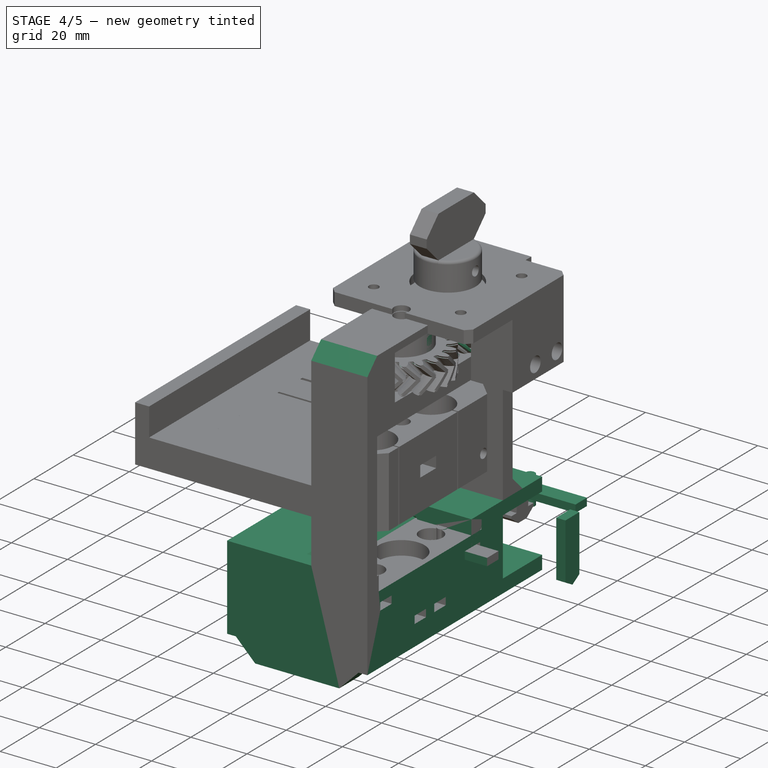
[diagram: stage 4 of 5 — iso view after this stage's code; geometry added in this stage tinted green]
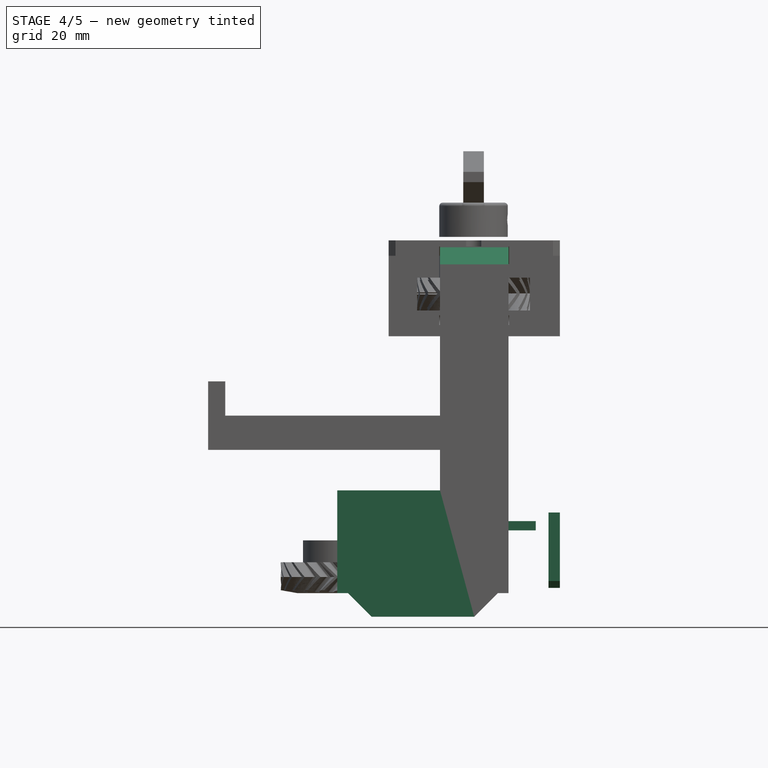
[diagram: stage 4 of 5 — front view after this stage's code; geometry added in this stage tinted green]
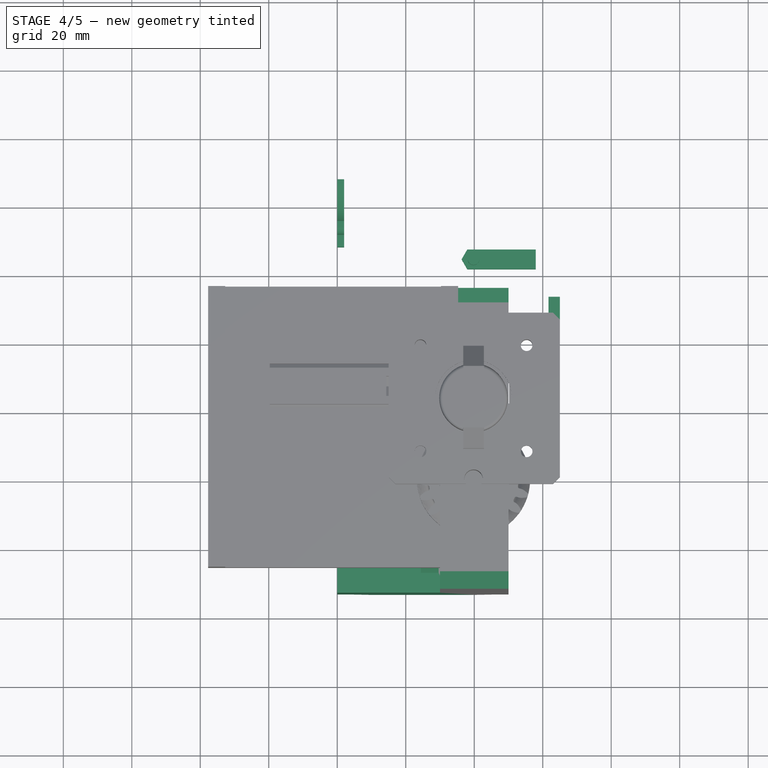
[diagram: stage 4 of 5 — top view after this stage's code; geometry added in this stage tinted green]
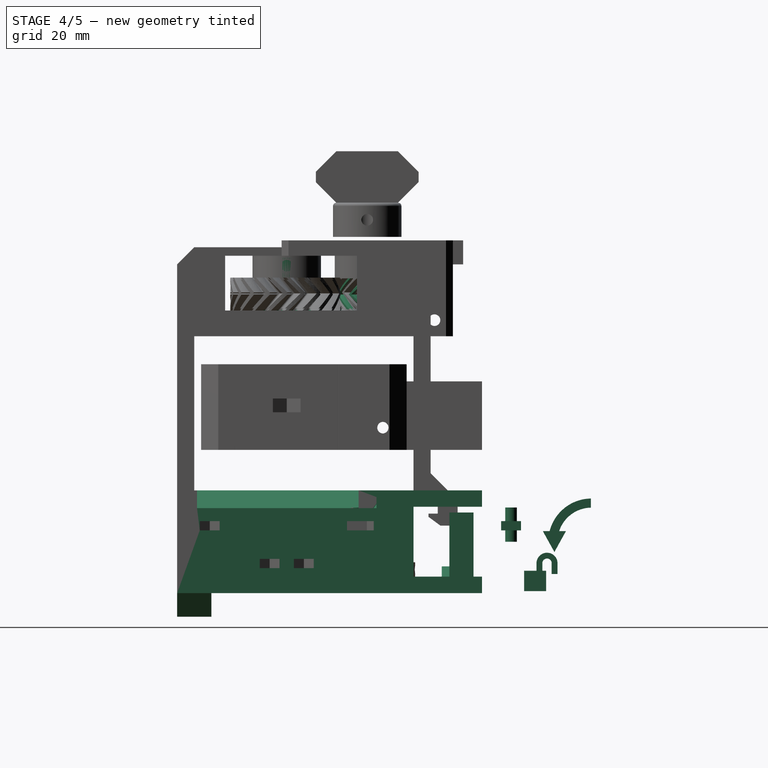
[diagram: stage 4 of 5 — right view after this stage's code; geometry added in this stage tinted green]
FEATURE [Part::Box] Box016  label="Cube013"
  Height = 3
  Length = 3
  Placement = pos=(18.95,24.25,4.8) rot=(0,0,1;0rad)
  Width = 3.5
FEATURE [Part::Box] Box018  label="Cube015"
  Height = 3
  Length = 3
  Placement = pos=(28.05,24.25,4.8) rot=(0,0,1;0rad)
  Width = 3.5
FEATURE [Part::FeaturePython] Clone017  label="Clone of M4Bolt"  # Draft clone (typed FeaturePython)
  Objects = -> [Cylinder1019]
  Placement = pos=(25,26,-2.2) rot=(0,0,1;0rad)
  Scale = (1,1,1)
FEATURE [PartDesign::Pad] Pad
  Length = 50
  Length2 = 100
  Placement = pos=(0,0,0) rot=(0.57735,0.57735,0.57735;2.0944rad)
  Sketch = -> Sketch
  Type = 0
FEATURE [Part::Cylinder] Cylinder1021  label="Cylinder1016"
  Angle = 335
  Height = 10
  Placement = pos=(20,70,15) rot=(0.211541,0.954201,0.211541;1.61766rad)
  Radius = 14
FEATURE [Part::Cylinder] Cylinder1023  label="Cylinder1018"
  Angle = 360
  Height = 40
  Placement = pos=(5,70,15) rot=(0,1,0;1.5708rad)
  Radius = 5
FEATURE [Part::Cone] Cone
  Angle = 335
  Height = 14
  Placement = pos=(6,70,15) rot=(0.211541,0.954201,0.211541;1.61766rad)
  Radius1 = 0
  Radius2 = 14
FEATURE [Part::Cylinder] Cylinder1024  label="Cylinder1019"
  Angle = 360
  Height = 5
  Placement = pos=(0,70,15) rot=(0,1,0;1.5708rad)
  Radius = 7.5
FEATURE [Part::Mirroring] Part__Mirroring002  label="Cone (Mirror #3)"
  Base = (25,0,0)
  Normal = (1,0,0)
  Source = -> Cone
FEATURE [Part::Mirroring] Part__Mirroring003  label="Cylinder1019 (Mirror #4)"
  Base = (25,0,0)
  Normal = (1,0,0)
  Source = -> Cylinder1024
FEATURE [Part::MultiFuse] Fusion030
  Shapes = -> [Cylinder1024,Part__Mirroring003,Cone,Part__Mirroring002,Cylinder1023,Cylinder1021]
FEATURE [Part::Offset] Offset
  Fill = false
  Intersection = false
  Join = 0
  Mode = 0
  SelfIntersection = false
  Source = -> Fusion030
  Value = 0.5
FEATURE [Part::FeaturePython] Clone027  label="Clone of Offset"  # Draft clone (typed FeaturePython)
  Objects = -> [Offset]
  Placement = pos=(0,-80,0) rot=(0,0,1;0rad)
  Scale = (1,1,1)
FEATURE [Sketcher::SketchObject] Sketch015
  sketch-geometry (7):
    g0: LineSegment StartX=-3.1 StartY=0 StartZ=0 EndX=-3.1 EndY=2 EndZ=0
    g1: LineSegment StartX=-3.1 StartY=2 StartZ=0 EndX=-5.8 EndY=2 EndZ=0
    g2: LineSegment StartX=-5.8 StartY=2 StartZ=0 EndX=-5.8 EndY=3.25 EndZ=0
    g3: LineSegment StartX=-5.8 StartY=3.25 StartZ=0 EndX=-2.2 EndY=5.9 EndZ=0
    g4: LineSegment StartX=-2.2 StartY=5.9 StartZ=0 EndX=0 EndY=5.9 EndZ=0
    g5: LineSegment StartX=0 StartY=5.9 StartZ=0 EndX=0 EndY=0 EndZ=0
    g6: LineSegment StartX=-3.1 StartY=0 StartZ=0 EndX=0 EndY=0 EndZ=0
  constraints (20):
    c: Vertical(g0)
    c: Coincident(g0,g1)
    c: Horizontal(g1)
    c: Coincident(g1,g2)
    c: Vertical(g2)
    c: Coincident(g2,g3)
    c: Coincident(g3,g4)
    c: Horizontal(g4)
    c: Coincident(g5,g4)
    c: Vertical(g5)
    c: Coincident(g6,g0)
    c: Coincident(g6,g5)
    c: Horizontal(g6)
    c: DistanceX(g6) = 3.1
    c: DistanceX(g1) = -2.7
    c: DistanceY(g2) = 1.25
    c: DistanceX(g4) = 2.2
    c: DistanceY(g5) = -5.9
    c: DistanceY(g0) = 2
    c: Coincident(g-1,g5)
FEATURE [PartDesign::Pad] Pad014
  Length = 50.4
  Length2 = 100
  Sketch = -> Sketch015
  Type = 0
FEATURE [Part::Mirroring] Part__Mirroring  label="Pad014 (Mirror #5)"
  Base = (0,0,0)
  Normal = (1,0,0)
  Source = -> Pad014
FEATURE [Part::MultiFuse] Fusion032
  Shapes = -> [Part__Mirroring,Pad014]
FEATURE [Part::Offset] Offset001
  Fill = false
  Intersection = false
  Join = 2
  Mode = 0
  Placement = pos=(50.2,26,25.4) rot=(0.57735,0.57735,-0.57735;4.18879rad)
  SelfIntersection = false
  Source = -> Fusion032
  Value = -0.2
FEATURE [Sketcher::SketchObject] Sketch016
  Placement = pos=(50,6,3.5) rot=(-0.57735,0.57735,0.57735;4.18879rad)
  sketch-geometry (4):
    g0: LineSegment StartX=0 StartY=0 StartZ=0 EndX=0 EndY=23 EndZ=0
    g1: LineSegment StartX=0 StartY=23 StartZ=0 EndX=6 EndY=14.4311 EndZ=0
    g2: LineSegment StartX=6 StartY=14.4311 StartZ=0 EndX=6 EndY=8.56889 EndZ=0
    g3: LineSegment StartX=6 StartY=8.56889 StartZ=0 EndX=0 EndY=0 EndZ=0
  constraints (11):
    c: Coincident(g-1,g0)
    c: Vertical(g0)
    c: Coincident(g0,g1)
    c: Coincident(g1,g2)
    c: Vertical(g2)
    c: Coincident(g2,g3)
    c: Coincident(g3,g0)
    c: Angle(g0,g1) = 0.610865
    c: DistanceY(g0) = 23
    c: Angle(g3,g0) = 0.610865
    c: DistanceX(g3) = -6
FEATURE [PartDesign::Pad] Pad015
  Length = 50
  Length2 = 100
  Placement = pos=(50,6,3.5) rot=(-0.57735,0.57735,0.57735;4.18879rad)
  Sketch = -> Sketch016
  Type = 0
FEATURE [Part::Offset] Offset003
  Fill = false
  Intersection = false
  Join = 2
  Mode = 0
  SelfIntersection = false
  Source = -> Pad015
  Value = 0.35
FEATURE [Part::Cut] Cut028
  Base = -> Pad
  Tool = -> Offset003
FEATURE [Part::MultiFuse] Fusion042
  Shapes = -> [Box018,Box016,Cut028]
FEATURE [Part::Cut] Cut029
  Base = -> Fusion042
  Tool = -> Clone017
FEATURE [Part::Cut] Cut030
  Base = -> Cut029
  Tool = -> Clone027
FEATURE [Part::MultiFuse] Fusion043
  Shapes = -> [Cut030,Offset001]
FEATURE [Part::Chamfer] Chamfer005
  Base = -> Fusion043
  Edges = 2 edges r=2.99: [Edge68,Edge74]
FEATURE [Part::FeaturePython] Clone049  label="Clone of M3Bolt003"  # Draft clone (typed FeaturePython)
  Objects = -> [Cylinder1018]
  Placement = pos=(39.8,-0.5,15) rot=(0,0,1;0rad)
  Scale = (1,1,1)
FEATURE [Part::FeaturePython] Clone050  label="Clone of M3Bolt004"  # Draft clone (typed FeaturePython)
  Objects = -> [Cylinder1018]
  Placement = pos=(39.8,44.5,15) rot=(0,0,1;0rad)
  Scale = (1,1,1)
FEATURE [Part::FeaturePython] Clone051  label="Clone of M3NutHousingMaster004"  # Draft clone (typed FeaturePython)
  Objects = -> [Pad007]
  Placement = pos=(36.3,-0.5,18.3) rot=(0,0,1;0rad)
  Scale = (1,1,1)
FEATURE [Part::FeaturePython] Clone052  label="Clone of M3NutHousingMaster005"  # Draft clone (typed FeaturePython)
  Objects = -> [Pad007]
  Placement = pos=(36.3,44.5,18.3) rot=(0,0,1;0rad)
  Scale = (1,1,1)
FEATURE [Sketcher::SketchObject] Sketch017
  Placement = pos=(0,-44.3752,-0.139305) rot=(0.57735,0.57735,0.57735;2.0944rad)
  sketch-geometry (19):
    g0: ArcOfCircle CenterX=112.375 CenterY=15.1393 CenterZ=0 NormalX=0 NormalY=0 NormalZ=1 Radius=12.6108 StartAngle=1.58666 EndAngle=2.89432
    g1: ArcOfCircle CenterX=112.375 CenterY=15.1393 CenterZ=0 NormalX=0 NormalY=0 NormalZ=1 Radius=9.94127 StartAngle=1.59092 EndAngle=2.82589
    g2: LineSegment StartX=100.148 StartY=18.2259 StartZ=0 EndX=98.1634 EndY=18.2259 EndZ=0
    g3: LineSegment StartX=98.1634 StartY=18.2259 StartZ=0 EndX=101.537 EndY=12.1295 EndZ=0
    g4: LineSegment StartX=101.537 StartY=12.1295 StartZ=0 EndX=104.91 EndY=18.2259 EndZ=0
    g5: LineSegment StartX=104.91 StartY=18.2259 StartZ=0 EndX=102.925 EndY=18.2259 EndZ=0
    g6: LineSegment StartX=112.175 StartY=25.0786 StartZ=0 EndX=112.175 EndY=27.7485 EndZ=0
    g7: LineSegment StartX=92.6911 StartY=6.64446 StartZ=0 EndX=96.3069 EndY=6.64446 EndZ=0
    g8: LineSegment StartX=99.1354 StartY=6.64446 StartZ=0 EndX=99.1354 EndY=0.715246 EndZ=0
    g9: LineSegment StartX=99.1354 StartY=0.715246 StartZ=0 EndX=92.6911 EndY=0.715246 EndZ=0
    g10: LineSegment StartX=92.6911 StartY=0.715246 StartZ=0 EndX=92.6911 EndY=6.64446 EndZ=0
    g11: ArcOfCircle CenterX=99.376 CenterY=8.85237 CenterZ=0 NormalX=0 NormalY=0 NormalZ=1 Radius=1.36512 StartAngle=0 EndAngle=3.14159
    g12: LineSegment StartX=98.0108 StartY=8.85237 StartZ=0 EndX=98.0108 EndY=6.64446 EndZ=0
    g13: LineSegment StartX=100.741 StartY=8.85237 StartZ=0 EndX=100.741 EndY=5.69448 EndZ=0
    g14: ArcOfCircle CenterX=99.376 CenterY=8.85237 CenterZ=0 NormalX=0 NormalY=0 NormalZ=1 Radius=3.06905 StartAngle=0 EndAngle=3.14159
    g15: LineSegment StartX=96.3069 StartY=8.85237 StartZ=0 EndX=96.3069 EndY=6.64446 EndZ=0
    g16: LineSegment StartX=102.445 StartY=8.85237 StartZ=0 EndX=102.445 EndY=5.69448 EndZ=0
    g17: LineSegment StartX=98.0108 StartY=6.64446 StartZ=0 EndX=99.1354 EndY=6.64446 EndZ=0
    g18: LineSegment StartX=100.741 StartY=5.69448 StartZ=0 EndX=102.445 EndY=5.69448 EndZ=0
  constraints (37):
    c: Coincident(g1,g0)
    c: Coincident(g0,g2)
    c: Coincident(g2,g3)
    c: Coincident(g3,g4)
    c: Coincident(g4,g5)
    c: Coincident(g5,g1)
    c: Horizontal(g5)
    c: Coincident(g1,g6)
    c: Coincident(g6,g0)
    c: Vertical(g6)
    c: Horizontal(g2)
    c: Equal(g5,g2)
    c: Equal(g3,g4)
    c: DistanceY(g0,g1) = 0
    c: Coincident(g17,g8)
    c: Coincident(g8,g9)
    c: Coincident(g9,g10)
    c: Coincident(g10,g7)
    c: Horizontal(g7)
    c: Horizontal(g9)
    c: Vertical(g8)
    c: Vertical(g10)
    c: Tangent(g11,g13) = 1.5708
    c: Tangent(g11,g12) = -1.5708
    c: Vertical(g12)
    c: Tangent(g14,g16) = 1.5708
    c: Tangent(g14,g15) = -1.5708
    c: Vertical(g15)
    c: Coincident(g14,g11)
    c: Vertical(g16)
    c: Vertical(g13)
    c: Tangent(g7,g17)
    c: Coincident(g12,g17)
    c: Coincident(g7,g15)
    c: Coincident(g18,g13)
    c: Coincident(g18,g16)
    c: Horizontal(g18)
FEATURE [PartDesign::Pad] Pad016
  Length = 2
  Length2 = 100
  Placement = pos=(0,-44.3752,-0.139305) rot=(0.57735,0.57735,0.57735;2.0944rad)
  Sketch = -> Sketch017
  Type = 0
FEATURE [Part::Chamfer] Chamfer010  label="Bot"
  Base = -> Chamfer005
  Edges = 4 edges r=1: [Edge88,Edge94,Edge102,Edge108]
FEATURE [Sketcher::SketchObject] Sketch018
  Placement = pos=(0,0,0) rot=(0.57735,0.57735,0.57735;2.0944rad)
  sketch-geometry (8):
    g0: LineSegment StartX=36 StartY=25.2 StartZ=0 EndX=36 EndY=30 EndZ=0
    g1: LineSegment StartX=36 StartY=0 StartZ=0 EndX=36 EndY=4.8 EndZ=0
    g2: LineSegment StartX=36 StartY=4.8 StartZ=0 EndX=16 EndY=4.8 EndZ=0
    g3: LineSegment StartX=16 StartY=4.8 StartZ=0 EndX=16 EndY=25.2 EndZ=0
    g4: LineSegment StartX=16 StartY=25.2 StartZ=0 EndX=36 EndY=25.2 EndZ=0
    g5: LineSegment StartX=36 StartY=0 StartZ=0 EndX=-53 EndY=0 EndZ=0
    g6: LineSegment StartX=-53 StartY=0 StartZ=0 EndX=-53 EndY=30 EndZ=0
    g7: LineSegment StartX=-53 StartY=30 StartZ=0 EndX=36 EndY=30 EndZ=0
  constraints (24):
    c: Vertical(g0)
    c: Vertical(g1)
    c: Coincident(g1,g2)
    c: Horizontal(g2)
    c: Coincident(g2,g3)
    c: Vertical(g3)
    c: Coincident(g3,g4)
    c: Coincident(g4,g0)
    c: Horizontal(g4)
    c: Equal(g0,g1)
    c: Equal(g2,g4)
    c: DistanceY(g3) = 20.4
    c: DistanceX(g4) = 20
    c: DistanceY(g1) = 4.8
    c: DistanceX(g-1,g1) = 36
    c: Coincident(g1,g5)
    c: Horizontal(g5)
    c: Coincident(g5,g6)
    c: Vertical(g6)
    c: Coincident(g6,g7)
    c: Coincident(g7,g0)
    c: Horizontal(g7)
    c: PointOnObject(g-1,g5)
    c: DistanceX(g7) = 89
FEATURE [PartDesign::Pad] Pad017
  Length = 50
  Length2 = 100
  Placement = pos=(0,0,0) rot=(0.57735,0.57735,0.57735;2.0944rad)
  Sketch = -> Sketch018
  Type = 0
FEATURE [Part::Box] Box035  label="Cube032"
  Height = 3
  Length = 3
  Placement = pos=(18.95,24.25,4.8) rot=(0,0,1;0rad)
  Width = 3.5
FEATURE [Part::Box] Box036  label="Cube033"
  Height = 3
  Length = 3
  Placement = pos=(28.05,24.25,4.8) rot=(0,0,1;0rad)
  Width = 3.5
FEATURE [Part::MultiFuse] Fusion051
  Shapes = -> [Box036,Box035,Pad017]
FEATURE [Part::FeaturePython] Clone053  label="Clone of M4Bolt001"  # Draft clone (typed FeaturePython)
  Objects = -> [Cylinder1019]
  Placement = pos=(25,26,-2.2) rot=(0,0,1;0rad)
  Scale = (1,1,1)
FEATURE [Part::Cut] Cut038
  Base = -> Fusion051
  Tool = -> Clone053
FEATURE [Part::MultiFuse] Fusion053
  Shapes = -> [Offset005,Cut038]
FEATURE [Part::MultiFuse] Fusion057
  Shapes = -> [Box037,Box038,Fusion053,Cut039]
FEATURE [Part::Cut] Cut040
  Base = -> Fusion057
  Tool = -> Fusion058
FEATURE [Part::Chamfer] Chamfer012
  Base = -> Cut040
  Edges = 3 edges r=5: [Edge7,Edge33,Edge79]
FEATURE [Part::MultiFuse] Fusion059
  Shapes = -> [Box042,Chamfer012]
FEATURE [Part::Chamfer] Chamfer013
  Base = -> Fusion059
  Edges = 2 edges r=6.89: [Edge6,Edge11]
FEATURE [Part::Cut] Cut041
  Base = -> Chamfer013
  Tool = -> Fusion060
FEATURE [Part::Chamfer] Chamfer014  label="BodyBotSimple"
  Base = -> Cut041
  Edges = 2 edges r=2.99: [Edge139,Edge142]
FEATURE [Sketcher::SketchObject] Sketch020  label="M3NutHousingSketch003"
  Placement = pos=(65,30,1.5) rot=(0,-1,0;1.5708rad)
  sketch-geometry (5):
    g0: LineSegment StartX=0 StartY=0 StartZ=0 EndX=2.03516 EndY=3.525 EndZ=0
    g1: LineSegment StartX=2.03516 StartY=3.525 StartZ=0 EndX=22.0352 EndY=3.525 EndZ=0
    g2: LineSegment StartX=22.0352 StartY=3.525 StartZ=0 EndX=22.0352 EndY=-3.525 EndZ=0
    g3: LineSegment StartX=22.0352 StartY=-3.525 StartZ=0 EndX=2.03516 EndY=-3.525 EndZ=0
    g4: LineSegment StartX=2.03516 StartY=-3.525 StartZ=0 EndX=0 EndY=0 EndZ=0
  constraints (14):
    c: Coincident(g-1,g0)
    c: Coincident(g0,g1)
    c: Horizontal(g1)
    c: Coincident(g1,g2)
    c: Vertical(g2)
    c: Coincident(g2,g3)
    c: Horizontal(g3)
    c: Coincident(g3,g4)
    c: Coincident(g4,g0)
    c: Equal(g3,g1)
    c: Equal(g4,g0)
    c: DistanceY(g2) = -7.05
    c: Angle(g-1,g0) = 1.0472
    c: DistanceX(g3) = -20
FEATURE [PartDesign::Pad] Pad019  label="M4NutHousingMaster"
  Length = 3.3
  Length2 = 100
  Placement = pos=(65,30,1.5) rot=(0,-1,0;1.5708rad)
  Sketch = -> Sketch020
  Type = 0
FEATURE [Part::Feature] Compound001001  label="Compound003"
  shape: bbox 33.05 x 33.05 x 15.4 mm, 417 faces, 2 solids (baked)
FEATURE [Part::Feature] Compound002001  label="Compound004"
  Placement = pos=(1,0,0) rot=(0,0,1;0rad)
  shape: bbox 19.06 x 19 x 15.4 mm, 216 faces, 2 solids (baked)
FEATURE [Part::Compound] Compound002002
  Links = -> [Compound001001,Compound002001]
  Placement = pos=(39.8,-21,82.5) rot=(0,0,1;1.5708rad)
FEATURE [Part::Cut] Cut049
  Base = -> Chamfer014
  Tool = -> Clone084
FEATURE [Part::Chamfer] Chamfer015
  Base = -> Cut049
  Edges = 1 edges r=5.19: [Edge135]
FEATURE [Part::Chamfer] Chamfer016  label="HolderSimple"
  Base = -> Chamfer015
  Edges = 1 edges r=4.99: [Edge130]
FEATURE [Part::FeaturePython] Clone092  label="Clone of HolderSimple"  # Draft clone (typed FeaturePython)
  Objects = -> [Chamfer016]
  Scale = (1,1,1)
FEATURE [Part::FeaturePython] Clone093  label="Clone of BotFix"  # Draft clone (typed FeaturePython)
  Objects = -> [Cut050]
  Scale = (1,1,1)
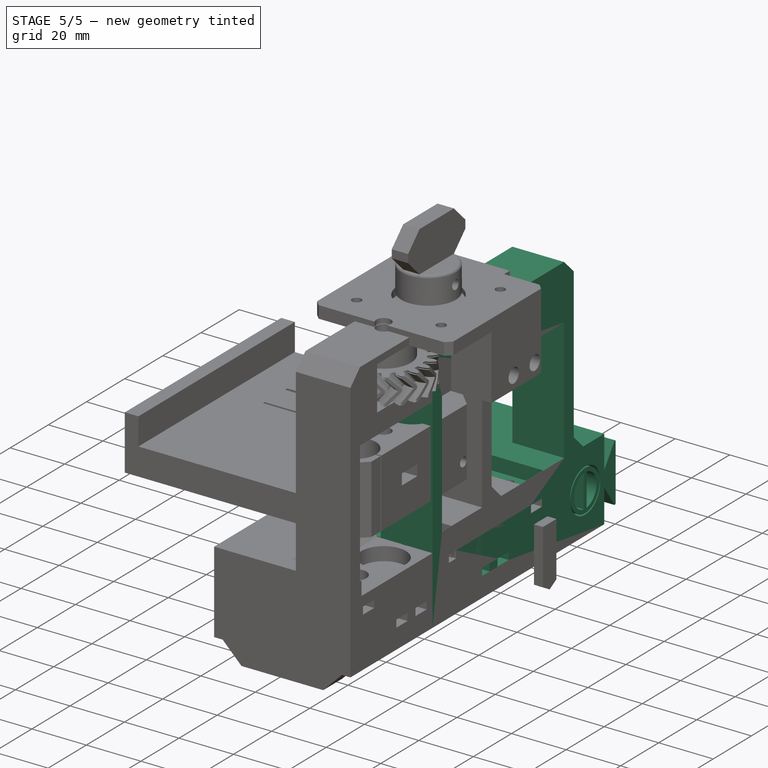
[diagram: stage 5 of 5 — iso view after this stage's code; geometry added in this stage tinted green]
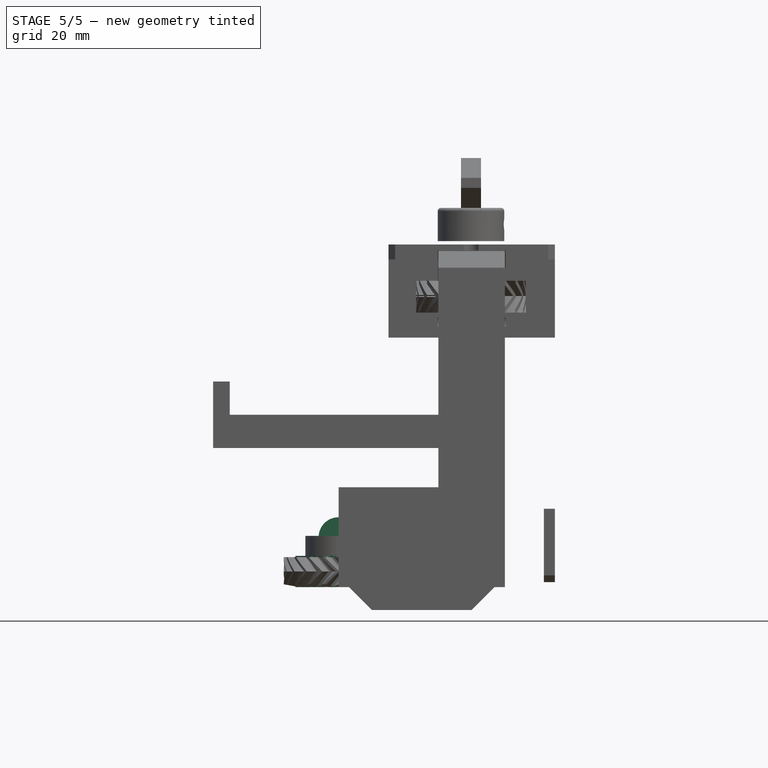
[diagram: stage 5 of 5 — front view after this stage's code; geometry added in this stage tinted green]
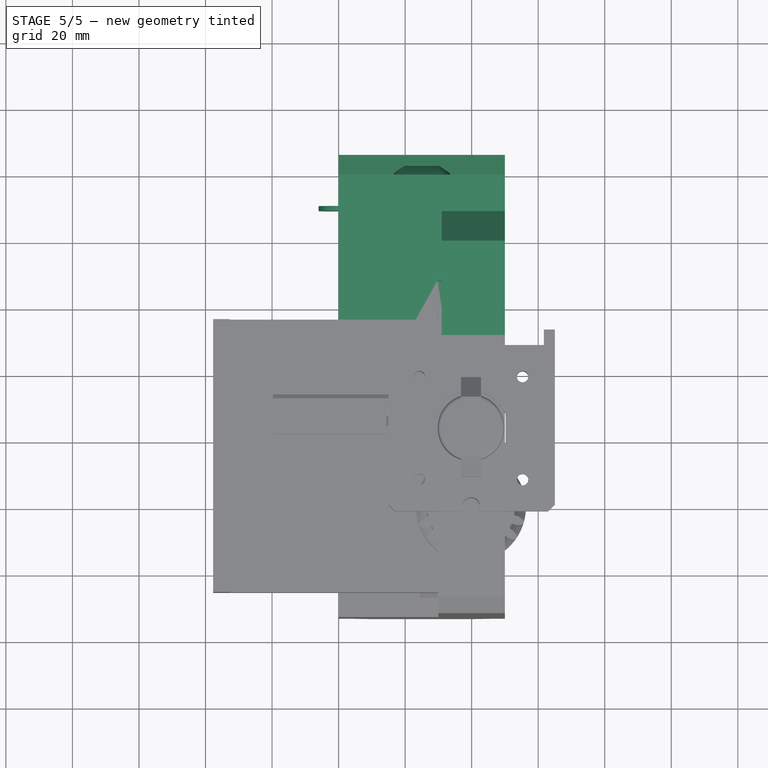
[diagram: stage 5 of 5 — top view after this stage's code; geometry added in this stage tinted green]
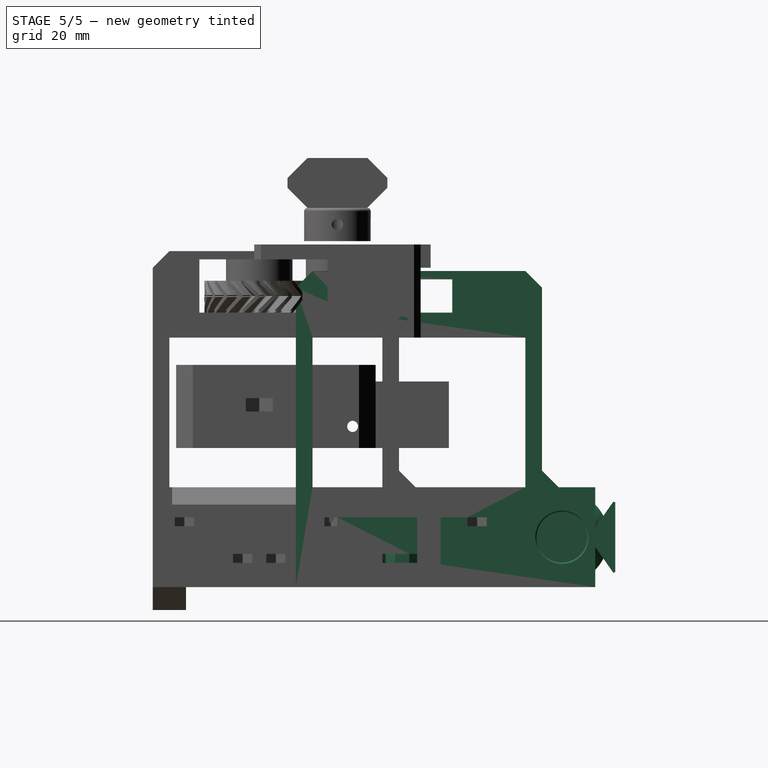
[diagram: stage 5 of 5 — right view after this stage's code; geometry added in this stage tinted green]
FEATURE [Part::FeaturePython] Clone  label="Clone of Bearing625ZZMaster"  # Draft clone (typed FeaturePython)
  Objects = -> [Cylinder1003]
  Placement = pos=(39.8,22,20) rot=(0,0,1;1.5708rad)
  Scale = (1,1,1)
FEATURE [Part::FeaturePython] Clone003  label="Clone of 5mmRodMaster"  # Draft clone (typed FeaturePython)
  Objects = -> [Cylinder1006]
  Placement = pos=(39.8,7,0) rot=(0,0,1;1.5708rad)
  Scale = (1,1,1)
FEATURE [Part::FeaturePython] Clone004  label="Clone of 5mmRodMaster001"  # Draft clone (typed FeaturePython)
  Objects = -> [Cylinder1006]
  Placement = pos=(39.8,37,0) rot=(0,0,1;1.5708rad)
  Scale = (1,1,1)
FEATURE [Part::MultiFuse] Fusion010
  Shapes = -> [Clone,Clone004,Clone003]
FEATURE [Part::Cylinder] Cylinder
  Angle = 360
  Height = 9.4
  Radius = 13
FEATURE [Part::Cylinder] Cylinder1016  label="Cylinder1014"
  Angle = 360
  Height = 10
  Placement = pos=(0,13.5,0) rot=(0,0,1;0rad)
  Radius = 1
FEATURE [Part::FeaturePython] Array  # Draft array (typed FeaturePython)
  Angle = 360
  ArrayType = 1
  Axis = (0,0,1)
  Base = -> Cylinder1016
  Center = (0,0,0)
  Fuse = false
  IntervalAxis = (0,0,0)
  IntervalX = (1,0,0)
  IntervalY = (0,1,0)
  IntervalZ = (0,0,0)
  NumberPolar = 15
  NumberX = 2
  NumberY = 2
  NumberZ = 1
FEATURE [Part::Cut] Cut013
  Base = -> Cylinder
  Tool = -> Array
FEATURE [Part::FeaturePython] Clone010  label="Clone of M3NutHousingMaster001"  # Draft clone (typed FeaturePython)
  Objects = -> [Pad007]
  Placement = pos=(6.7,0,1.5) rot=(0,-1,0;1.5708rad)
  Scale = (1,1,1)
FEATURE [Part::FeaturePython] Clone023  label="Clone of M3BoltHead"  # Draft clone (typed FeaturePython)
  Objects = -> [Fusion024]
  Placement = pos=(0,0,5) rot=(0,1,0;1.5708rad)
  Scale = (1,1,1)
FEATURE [Part::FeaturePython] Clone024  label="Clone of 5mmRodMaster004"  # Draft clone (typed FeaturePython)
  Objects = -> [Cylinder1014]
  Scale = (1,1,1)
FEATURE [Part::MultiFuse] Fusion
  Shapes = -> [Clone024,Clone010,Clone023]
FEATURE [Part::Cut] Cut019  label="Wheel"
  Base = -> Cut013
  Tool = -> Fusion
FEATURE [Sketcher::SketchObject] Sketch012
  Placement = pos=(0,-10,0) rot=(0.57735,0.57735,0.57735;2.0944rad)
  sketch-geometry (9):
    g0: LineSegment StartX=0 StartY=0 StartZ=0 EndX=90 EndY=0 EndZ=0
    g1: LineSegment StartX=90 StartY=0 StartZ=0 EndX=90 EndY=12.0689 EndZ=0
    g2: LineSegment StartX=90 StartY=12.0689 StartZ=0 EndX=96 EndY=3.5 EndZ=0
    g3: LineSegment StartX=96 StartY=3.5 StartZ=0 EndX=96 EndY=26.5 EndZ=0
    g4: LineSegment StartX=96 StartY=26.5 StartZ=0 EndX=90 EndY=17.9311 EndZ=0
    g5: LineSegment StartX=90 StartY=17.9311 StartZ=0 EndX=90 EndY=30 EndZ=0
    g6: LineSegment StartX=90 StartY=30 StartZ=0 EndX=0 EndY=30 EndZ=0
    g7: LineSegment StartX=0 StartY=30 StartZ=0 EndX=0 EndY=0 EndZ=0
    g8: LineSegment [constr] StartX=90 StartY=17.9311 StartZ=0 EndX=90 EndY=12.0689 EndZ=0
  constraints (27):
    c: PointOnObject(g7,g-2)
    c: PointOnObject(g0,g-1)
    c: PointOnObject(g0,g-1)
    c: Coincident(g0,g1)
    c: Vertical(g1)
    c: Coincident(g1,g2)
    c: Coincident(g2,g3)
    c: Vertical(g3)
    c: Coincident(g3,g4)
    c: Coincident(g4,g5)
    c: Vertical(g5)
    c: Coincident(g5,g6)
    c: PointOnObject(g6,g-2)
    c: Horizontal(g6)
    c: Coincident(g6,g7)
    c: DistanceX(g6) = -90
    c: Coincident(g8,g4)
    c: Vertical(g8)
    c: Coincident(g8,g1)
    c: Angle(g1,g2) = 0.610865
    c: Angle(g4,g5) = 0.610865
    c: Equal(g5,g1)
    c: DistanceY(g3) = 23
    c: DistanceX(g4) = -6
    c: DistanceY(g6,g0) = -30
    c: Coincident(g0,g-1)
    c: Coincident(g7,g-1)
FEATURE [PartDesign::Pad] Pad011
  Length = 50
  Length2 = 100
  Placement = pos=(0,-10,0) rot=(0.57735,0.57735,0.57735;2.0944rad)
  Sketch = -> Sketch012
  Type = 0
FEATURE [Part::Cylinder] Cylinder1026  label="Cylinder1041"
  Angle = 165
  Height = 10
  Placement = pos=(20,70,15) rot=(0.211541,0.954201,0.211541;1.61766rad)
  Radius = 14
FEATURE [Part::Cylinder] Cylinder1027  label="Cylinder1042"
  Angle = 360
  Height = 40
  Placement = pos=(5,70,15) rot=(0,1,0;1.5708rad)
  Radius = 5
FEATURE [Part::Cone] Cone001
  Angle = 165
  Height = 14
  Placement = pos=(6,70,15) rot=(0.211541,0.954201,0.211541;1.61766rad)
  Radius1 = 0
  Radius2 = 14
FEATURE [Part::Cylinder] Cylinder1029  label="Cylinder1043"
  Angle = 360
  Height = 5
  Placement = pos=(45,70,15) rot=(0,1,0;1.5708rad)
  Radius = 7.5
FEATURE [Part::Thickness] Thickness001
  Faces = -> Cylinder1029 [Face2]
  Intersection = false
  Join = 0
  Mode = 0
  SelfIntersection = false
  Value = -1.5
FEATURE [Part::Box] Box025  label="Cube022"
  Height = 12
  Length = 4
  Placement = pos=(46,69.25,9) rot=(0,0,1;0rad)
  Width = 1.5
FEATURE [Part::MultiFuse] Fusion028
  Shapes = -> [Box025,Thickness001]
FEATURE [Part::Mirroring] Part__Mirroring001  label="Fusion028 (Mirror #2)"
  Base = (25,0,0)
  Normal = (1,0,0)
  Source = -> Fusion028
FEATURE [Part::Cut] Cut022
  Base = -> Pad011
  Tool = -> Offset
FEATURE [Part::Mirroring] Part__Mirroring004  label="Cone001 (Mirror #5)"
  Base = (25,0,0)
  Normal = (1,0,0)
  Source = -> Cone001
FEATURE [Part::MultiFuse] Fusion031
  Shapes = -> [Part__Mirroring001,Fusion028,Cylinder1027,Cylinder1026,Part__Mirroring004,Cone001]
FEATURE [Part::Cut] Cut024
  Base = -> Cut022
  Tool = -> Fusion010
FEATURE [Part::Box] Box027  label="Cube024"
  Height = 5
  Length = 10.4
  Placement = pos=(34.6,1.8,0) rot=(0,0,1;0rad)
  Width = 40.4
FEATURE [Part::FeaturePython] Clone029  label="Clone of M3NutHousingMaster002"  # Draft clone (typed FeaturePython)
  Objects = -> [Pad007]
  Placement = pos=(37,27,7.3) rot=(0,0,1;0rad)
  Scale = (1,1,1)
FEATURE [Part::FeaturePython] Clone030  label="Clone of M3NutHousingMaster003"  # Draft clone (typed FeaturePython)
  Objects = -> [Pad007]
  Placement = pos=(37,17,7.3) rot=(0,0,1;0rad)
  Scale = (1,1,1)
FEATURE [Part::FeaturePython] Clone031  label="Clone of M3Bolt"  # Draft clone (typed FeaturePython)
  Objects = -> [Cylinder1018]
  Placement = pos=(40.5,27,4) rot=(0,0,1;0rad)
  Scale = (1,1,1)
FEATURE [Part::FeaturePython] Clone032  label="Clone of M3Bolt002"  # Draft clone (typed FeaturePython)
  Objects = -> [Cylinder1018]
  Placement = pos=(40.5,17,4) rot=(0,0,1;0rad)
  Scale = (1,1,1)
FEATURE [Part::MultiFuse] Fusion040
  Shapes = -> [Clone032,Clone031,Clone030,Box027,Clone029]
FEATURE [Part::Box] Box029  label="Cube026"
  Height = 20
  Length = 19
  Placement = pos=(31,-10,75) rot=(0,0,1;0rad)
  Width = 74
FEATURE [Part::Box] Box030  label="Cube027"
  Height = 75
  Length = 19
  Placement = pos=(31,-10,0) rot=(0,0,1;0rad)
  Width = 5
FEATURE [Part::Box] Box031  label="Cube028"
  Height = 45
  Length = 19
  Placement = pos=(31,59,30) rot=(0,0,1;0rad)
  Width = 5
FEATURE [Part::Box] Box032  label="Cube029"
  Height = 10
  Length = 25
  Placement = pos=(30,7,82.5) rot=(0,0,1;0rad)
  Width = 30
FEATURE [Part::Cut] Cut031
  Base = -> Cut024
  Tool = -> Fusion040
FEATURE [Part::FeaturePython] Clone036  label="Clone of 8mmRodMaster002"  # Draft clone (typed FeaturePython)
  Objects = -> [Cylinder1006]
  Placement = pos=(39.8,37,10) rot=(0,0,1;0rad)
  Scale = (1,1,1)
FEATURE [Part::FeaturePython] Clone037  label="Clone of 8mmRodMaster003"  # Draft clone (typed FeaturePython)
  Objects = -> [Cylinder1006]
  Placement = pos=(39.8,7,10) rot=(0,0,1;0rad)
  Scale = (1,1,1)
FEATURE [Part::FeaturePython] Clone038  label="Clone of 5mmRodMaster005"  # Draft clone (typed FeaturePython)
  Objects = -> [Cylinder1014]
  Placement = pos=(39.8,22,2) rot=(0,0,1;0rad)
  Scale = (1,1,1)
FEATURE [Part::MultiFuse] Fusion044
  Shapes = -> [Clone036,Clone037,Clone038,Box032]
FEATURE [Part::Cut] Cut032
  Base = -> Box029
  Tool = -> Fusion044
FEATURE [Part::MultiFuse] Fusion045
  Shapes = -> [Cut031,Box030,Box031,Cut032]
FEATURE [Part::Box] Box033  label="Cube030"
  Height = 5
  Length = 20
  Placement = pos=(29.8,-4,25) rot=(0,0,1;0rad)
  Width = 52
FEATURE [Part::Offset] Offset004
  Fill = false
  Intersection = false
  Join = 0
  Mode = 0
  SelfIntersection = false
  Source = -> Box033
  Value = 0.15
FEATURE [Part::MultiFuse] Fusion048
  Shapes = -> [Clone051,Clone052,Clone050,Clone049,Offset004]
FEATURE [Part::Cut] Cut035
  Base = -> Fusion045
  Tool = -> Fusion048
FEATURE [Part::Chamfer] Chamfer006
  Base = -> Cut035
  Edges = 4 edges r=5: [Edge63,Edge65,Edge69,Edge79]
FEATURE [Part::Cylinder] Cylinder1033  label="Cylinder1047"
  Angle = 180
  Height = 1.5
  Placement = pos=(0,70.75,15) rot=(0.57735,-0.57735,0.57735;2.0944rad)
  Radius = 6
FEATURE [Part::MultiFuse] Fusion050
  Shapes = -> [Fusion031,Cylinder1033]
FEATURE [Part::Cut] Cut037
  Base = -> Chamfer006
  Tool = -> Pad016
FEATURE [Part::Chamfer] Chamfer
  Base = -> Cut037
  Edges = 2 edges r=1: [Edge67,Edge75]
FEATURE [Part::Compound] Compound  label="BodyBot"
  Links = -> [Fusion050,Chamfer]
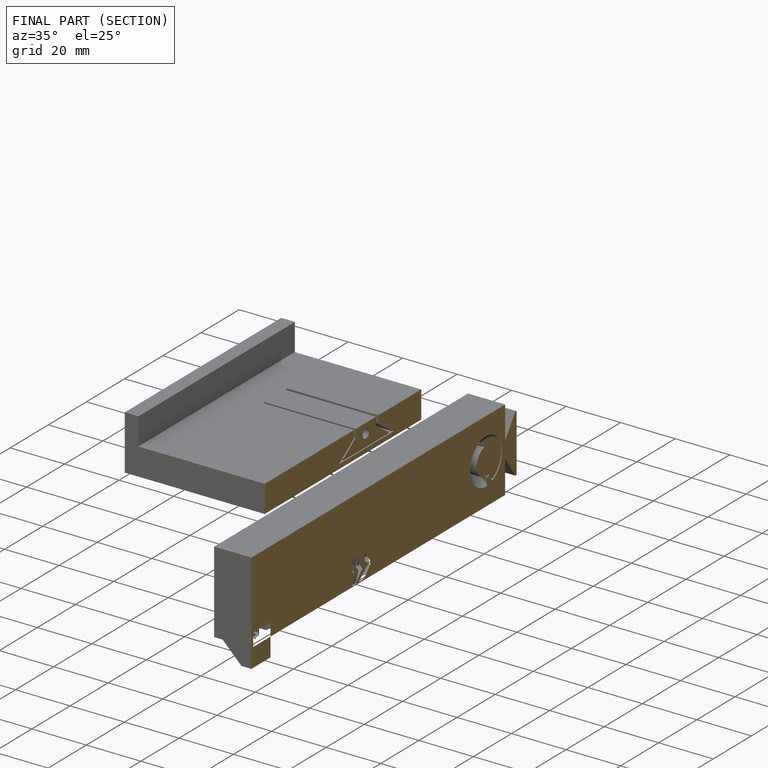
[diagram: finished part — half-section view (interior)]
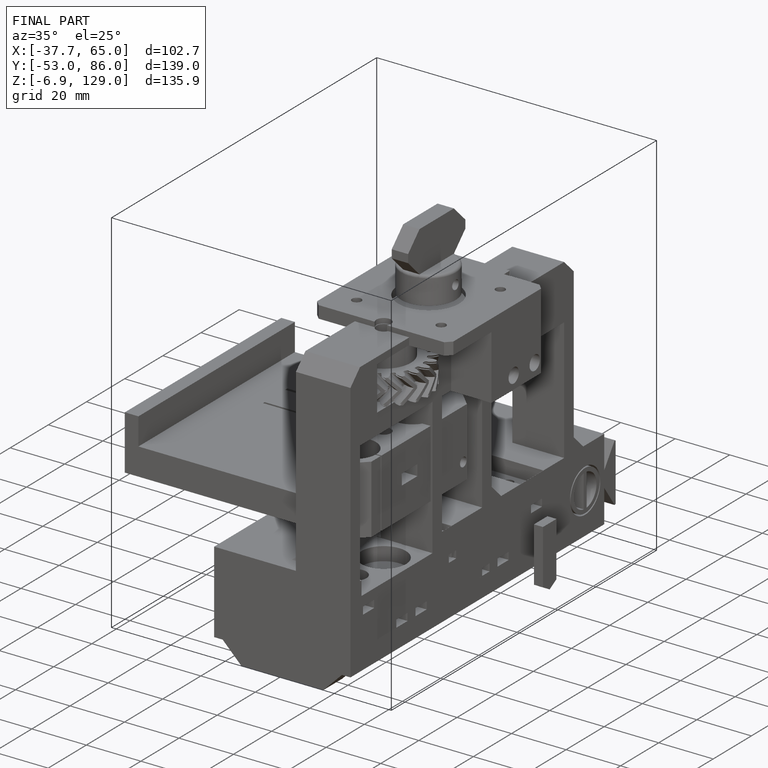
[diagram: finished part — iso view with bounding-box wireframe]
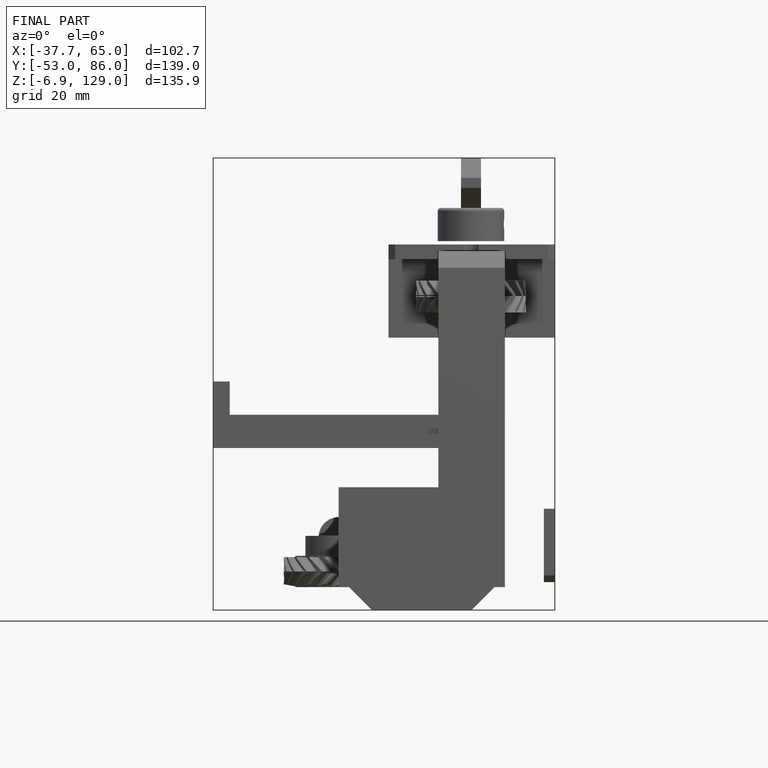
[diagram: finished part — front view with bounding-box wireframe]
